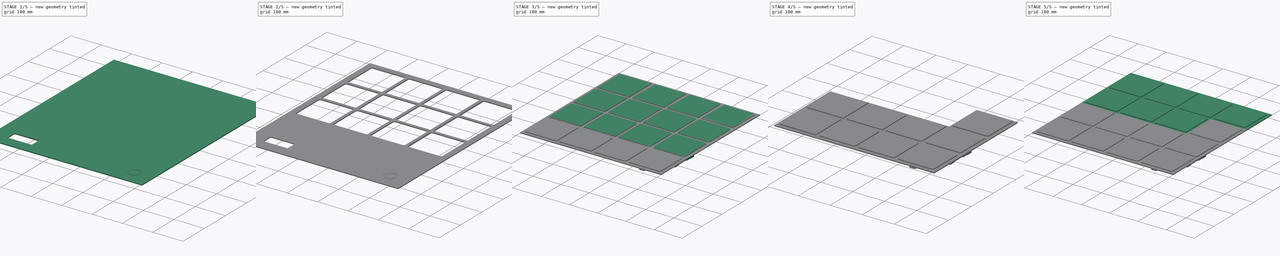
[diagram: build sequence overview — one tinted view per stage of 5, left to right]
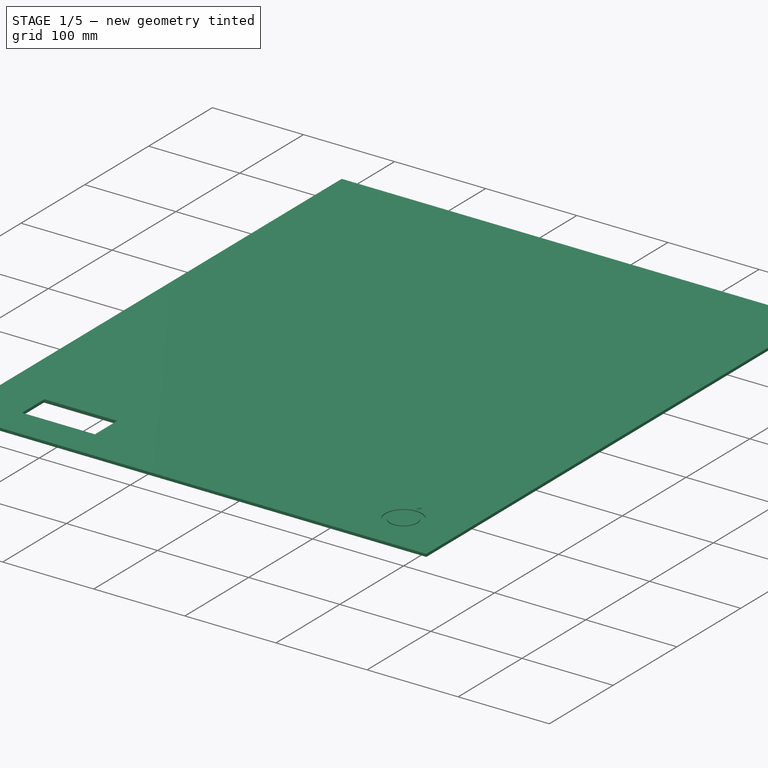
[diagram: stage 1 of 5 — iso view after this stage's code; geometry added in this stage tinted green]
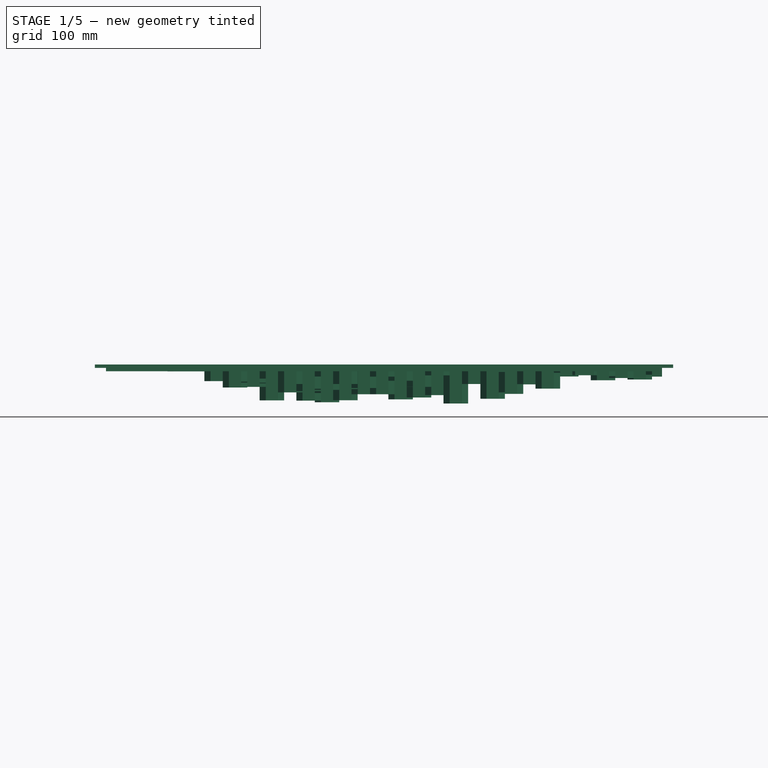
[diagram: stage 1 of 5 — front view after this stage's code; geometry added in this stage tinted green]
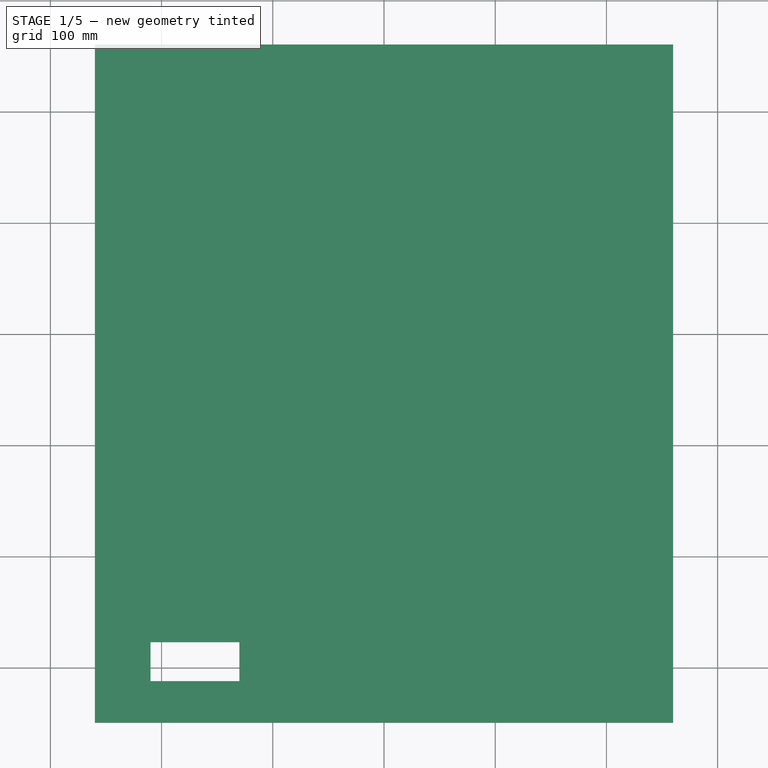
[diagram: stage 1 of 5 — top view after this stage's code; geometry added in this stage tinted green]
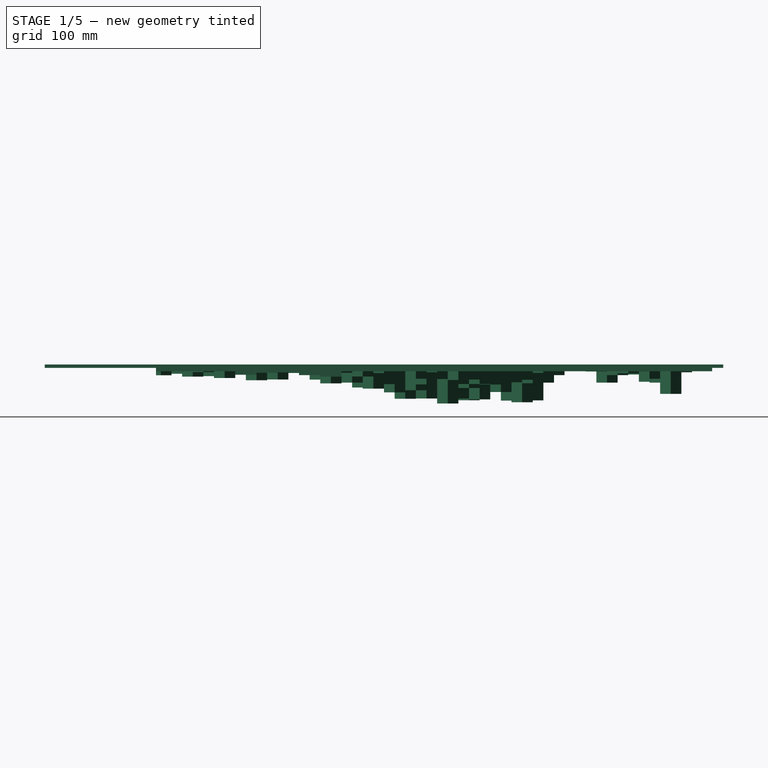
[diagram: stage 1 of 5 — right view after this stage's code; geometry added in this stage tinted green]
FCSTD DOCUMENT  (FreeCAD 0.17R13541 (Git))
Label: 3d_model_tutorial_division_negative
License: All rights reserved
LicenseURL: http://en.wikipedia.org/wiki/All_rights_reserved
objects: Drawing::FeatureViewPart×47, Part::MultiCommon×16, Part::Mirroring×12, Part::FeaturePython×8, Part::Cut×4, PartDesign::FeatureBase×4, Sketcher::SketchObject×4, PartDesign::Body×4, Part::Extrusion×4, Drawing::FeaturePage×1
note: 56 computed .brp shape members not serialized (recipe doc carries the construction recipe); baked Part::Feature solids carry a one-line shape summary decoded from their .brp

FEATURE [Part::FeaturePython] Clone  label="Body001"  # WARN: FeaturePython — macro-defined, semantics opaque (R4)
  AttacherType = Attacher::AttachEngine3D
  Fuse = false
  Scale = (1,1,1)
FEATURE [Part::FeaturePython] Clone001  # WARN: FeaturePython — macro-defined, semantics opaque (R4)
  AttacherType = Attacher::AttachEngine3D
  Fuse = false
  Placement = pos=(0,0,20.5) rot=(0,0,1;1.5708rad)
  Scale = (1,1,1)
FEATURE [Part::Cut] Cut  label="map"
  Base = -> Clone001
  Tool = -> Clone
FEATURE [PartDesign::FeatureBase] BaseFeature
  BaseFeature = -> Cut
FEATURE [Sketcher::SketchObject] Sketch
  ExternalGeometry = -> [BaseFeature]
  MapMode = 5
  Placement = pos=(0,0,-3) rot=(0,0,1;0rad)
  Support = -> [BaseFeature]
  sketch-geometry (36):
    g0: LineSegment StartX=-250 StartY=250 StartZ=0 EndX=-121.905 EndY=250 EndZ=0
    g1: LineSegment [constr] StartX=-121.905 StartY=250 StartZ=0 EndX=0 EndY=250 EndZ=0
    g2: LineSegment [constr] StartX=0 StartY=250 StartZ=0 EndX=123.676 EndY=250 EndZ=0
    g3: LineSegment [constr] StartX=123.676 StartY=250 StartZ=0 EndX=250 EndY=250 EndZ=0
    g4: LineSegment [constr] StartX=250 StartY=250 StartZ=0 EndX=250 EndY=126.908 EndZ=0
    g5: LineSegment [constr] StartX=250 StartY=126.908 StartZ=0 EndX=250 EndY=1.96272 EndZ=0
    g6: LineSegment [constr] StartX=250 StartY=1.96272 StartZ=0 EndX=250 EndY=-120.896 EndZ=0
    g7: LineSegment [constr] StartX=250 StartY=-120.896 StartZ=0 EndX=250 EndY=-250 EndZ=0
    g8: LineSegment [constr] StartX=250 StartY=-250 StartZ=0 EndX=126.964 EndY=-250 EndZ=0
    g9: LineSegment [constr] StartX=126.964 StartY=-250 StartZ=0 EndX=0 EndY=-250 EndZ=0
    g10: LineSegment [constr] StartX=0 StartY=-250 StartZ=0 EndX=-121.905 EndY=-250 EndZ=0
    g11: LineSegment [constr] StartX=-121.905 StartY=-250 StartZ=0 EndX=-250 EndY=-250 EndZ=0
    g12: LineSegment [constr] StartX=-250 StartY=-250 StartZ=0 EndX=-250 EndY=-122.5 EndZ=0
    g13: LineSegment [constr] StartX=-250 StartY=-122.5 StartZ=0 EndX=-250 EndY=0 EndZ=0
    g14: LineSegment [constr] StartX=-250 StartY=0 StartZ=0 EndX=-250 EndY=122.5 EndZ=0
    g15: LineSegment StartX=-250 StartY=122.5 StartZ=0 EndX=-250 EndY=250 EndZ=0
    g16: LineSegment StartX=-250 StartY=122.5 StartZ=0 EndX=-121.905 EndY=122.5 EndZ=0
    g17: LineSegment StartX=-121.905 StartY=122.5 StartZ=0 EndX=-121.905 EndY=250 EndZ=0
    g18: LineSegment [constr] StartX=-121.905 StartY=122.5 StartZ=0 EndX=-121.905 EndY=0 EndZ=0
    g19: LineSegment [constr] StartX=-121.905 StartY=0 StartZ=0 EndX=-250 EndY=0 EndZ=0
    g20: LineSegment [constr] StartX=-250 StartY=-122.5 StartZ=0 EndX=-121.905 EndY=-122.5 EndZ=0
    g21: LineSegment [constr] StartX=-121.905 StartY=-122.5 StartZ=0 EndX=-121.905 EndY=0 EndZ=0
    g22: LineSegment [constr] StartX=-121.905 StartY=-122.5 StartZ=0 EndX=-121.905 EndY=-250 EndZ=0
    g23: LineSegment [constr] StartX=-121.905 StartY=122.5 StartZ=0 EndX=0 EndY=122.5 EndZ=0
    g24: LineSegment [constr] StartX=0 StartY=122.5 StartZ=0 EndX=0 EndY=250 EndZ=0
    g25: LineSegment [constr] StartX=-121.905 StartY=0 StartZ=0 EndX=0 EndY=0 EndZ=0
    g26: LineSegment [constr] StartX=0 StartY=0 StartZ=0 EndX=0 EndY=122.5 EndZ=0
    g27: LineSegment [constr] StartX=-121.905 StartY=-122.5 StartZ=0 EndX=0 EndY=-122.5 EndZ=0
    g28: LineSegment [constr] StartX=0 StartY=-122.5 StartZ=0 EndX=0 EndY=0 EndZ=0
    g29: LineSegment [constr] StartX=0 StartY=-122.5 StartZ=0 EndX=0 EndY=-250 EndZ=0
    g30: LineSegment [constr] StartX=-127.5 StartY=127.5 StartZ=0 EndX=-121.905 EndY=122.5 EndZ=0
    g31: LineSegment [constr] StartX=-121.905 StartY=122.5 StartZ=0 EndX=-127.5 EndY=117.5 EndZ=0
    g32: LineSegment [constr] StartX=-127.5 StartY=5 StartZ=0 EndX=-121.905 EndY=0 EndZ=0
    g33: LineSegment [constr] StartX=-121.905 StartY=0 StartZ=0 EndX=-127.5 EndY=-5 EndZ=0
    g34: LineSegment [constr] StartX=-127.5 StartY=-117.5 StartZ=0 EndX=-121.905 EndY=-122.5 EndZ=0
    g35: LineSegment [constr] StartX=-121.905 StartY=-122.5 StartZ=0 EndX=-127.5 EndY=-127.5 EndZ=0
  constraints (88):
    c: Horizontal(g0)
    c: Coincident(g0,g1)
    c: Horizontal(g1)
    c: Coincident(g1,g2)
    c: Horizontal(g2)
    c: Coincident(g2,g3)
    c: Horizontal(g3)
    c: Coincident(g3,g4)
    c: Vertical(g4)
    c: Coincident(g4,g5)
    c: Vertical(g5)
    c: Coincident(g5,g6)
    c: Vertical(g6)
    c: Coincident(g6,g7)
    c: Vertical(g7)
    c: Coincident(g7,g8)
    c: Horizontal(g8)
    c: Coincident(g8,g9)
    c: Horizontal(g9)
    c: Coincident(g9,g10)
    c: Horizontal(g10)
    c: Coincident(g10,g11)
    c: Horizontal(g11)
    c: Coincident(g11,g12)
    c: Vertical(g12)
    c: Coincident(g12,g13)
    c: Vertical(g13)
    c: Coincident(g13,g14)
    c: Vertical(g14)
    c: Coincident(g14,g15)
    c: Coincident(g15,g0)
    c: Vertical(g15)
    c: Coincident(g0,g-3)
    c: Coincident(g-4,g11)
    c: Coincident(g-3,g3)
    c: Coincident(g14,g16)
    c: Horizontal(g16)
    c: Coincident(g16,g17)
    c: Coincident(g17,g0)
    c: Vertical(g17)
    c: Coincident(g16,g18)
    c: Vertical(g18)
    c: Coincident(g18,g19)
    c: Horizontal(g19)
    c: Coincident(g13,g19)
    c: Horizontal(g20)
    c: Coincident(g20,g21)
    c: Coincident(g21,g18)
    c: Vertical(g21)
    c: Coincident(g20,g12)
    c: Coincident(g20,g22)
    c: Coincident(g22,g10)
    c: Vertical(g22)
    c: Coincident(g16,g23)
    c: PointOnObject(g23,g-2)
    c: Horizontal(g23)
    c: Coincident(g23,g24)
    c: Coincident(g24,g1)
    c: Vertical(g24)
    c: Coincident(g25,g-1)
    c: Horizontal(g25)
    c: Coincident(g25,g26)
    c: Coincident(g26,g23)
    c: Coincident(g20,g27)
    c: PointOnObject(g27,g-2)
    c: Horizontal(g27)
    c: Coincident(g27,g28)
    c: Coincident(g28,g-1)
    c: Coincident(g29,g27)
    c: Coincident(g29,g9)
    c: Vertical(g29)
    c: Equal(g21,g28)
    c: Coincident(g25,g18)
    c: Coincident(g-5,g30)
    c: Coincident(g30,g16)
    c: Coincident(g30,g31)
    c: Coincident(g31,g-6)
    c: Equal(g30,g31)
    c: Coincident(g-7,g32)
    c: Coincident(g32,g18)
    c: Coincident(g32,g33)
    c: Coincident(g33,g-8)
    c: Coincident(g-9,g34)
    c: Coincident(g34,g20)
    c: Coincident(g34,g35)
    c: Coincident(g35,g-10)
    c: Equal(g34,g35)
    c: Equal(g32,g33)
FEATURE [PartDesign::Body] Body
  BaseFeature = -> Cut
  Group = -> [BaseFeature,Sketch]
  Origin = -> Origin
  Tip = -> BaseFeature
FEATURE [Part::Extrusion] Extrude  label="A1"
  Base = -> Sketch
  Dir = (0,0,1)
  DirMode = 2
  FaceMakerClass = Part::FaceMakerBullseye
  LengthFwd = 50
  LengthRev = 0
  Solid = true
  Symmetric = true
FEATURE [Part::Mirroring] Part__Mirroring  label="D1"
  Base = (0,0,0)
  Normal = (0,1,0)
  Source = -> Extrude
FEATURE [Part::Mirroring] Part__Mirroring002  label="D4"
  Base = (0,0,0)
  Normal = (1,0,0)
  Source = -> Part__Mirroring
FEATURE [Part::FeaturePython] Clone006  # WARN: FeaturePython — macro-defined, semantics opaque (R4)
  AttacherType = Attacher::AttachEngine3D
  Fuse = false
  Placement = pos=(0,0,20.5) rot=(0,0,1;1.5708rad)
  Scale = (1,1,1)
FEATURE [Part::FeaturePython] Clone007  label="Body006"  # WARN: FeaturePython — macro-defined, semantics opaque (R4)
  AttacherType = Attacher::AttachEngine3D
  Fuse = false
  Scale = (1,1,1)
FEATURE [Part::MultiCommon] Common015  label="D4_cut"
  Shapes = -> [Cut,Part__Mirroring002]
FEATURE [Drawing::FeatureViewPart] Ortho  label="Ortho_0_0"
  Direction = (1,0,0)
  HiddenWidth = 0.15
  LineWidth = 0.35
  Rotation = -90
  ShowHiddenLines = false
  ShowSmoothLines = false
  Source = -> Common
  Tolerance = 0.05
  ViewResult = <g id="Ortho_0_0"\n   transform="rotate(-90,134.29,681.126) translate(134.29,681.126) scale(1,1)"\n  >\n<g   fill="none"\n   stroke="rgb(0, 0, 0)"\n   stroke-linecap="butt"\n   stroke-linejoin="miter"\n   stroke-width="0.350000"\n   transform="scale(1,-1)"\n  >\n<path id= "1" d=" M -6 -250 L -6 -122.5 " />\n<path id= "2" d=" M -6 -250 L -3 -250 " />\n<path id= "3" d=" M -3 -122.5 L -3 -250 " />\n<path id= "4" d=" M -6 -122.5 L -3 -122.5 " />\n<path id= "5" d=" M 0 -240 L -3 -240 " />\n<path id= "6" d=" M 0 -240 L 0 -127.5 " />\n<path id= "7" d=" M 0 -127.5 L -3 -127.5 " />\n</g>\n</g>
  Visible = false
  X = 134.29
  Y = 681.126
FEATURE [Drawing::FeatureViewPart] Ortho001  label="Ortho_0_1"
  Direction = (0,0,1)
  HiddenWidth = 0.15
  LineWidth = 0.35
  Rotation = 90
  ShowHiddenLines = false
  ShowSmoothLines = false
  Source = -> Common
  Tolerance = 0.05
  ViewResult = <g id="Ortho_0_1"\n   transform="rotate(90,134.29,527.016) translate(134.29,527.016) scale(1,1)"\n  >\n<g   fill="none"\n   stroke="rgb(0, 0, 0)"\n   stroke-linecap="butt"\n   stroke-linejoin="miter"\n   stroke-width="0.350000"\n   transform="scale(1,-1)"\n  >\n<path id= "1" d=" M -250 250 L -250 122.5 " />\n<path id= "2" d=" M -121.905 250 L -250 250 " />\n<path id= "3" d=" M -121.905 122.5 L -121.905 250 " />\n<path id= "4" d=" M -250 122.5 L -121.905 122.5 " />\n<path id= "5" d=" M -236 240 L -127.5 240 " />\n<path d="M-236 240 A4 4 0 0 1 -240 236" /><path id= "7" d=" M -127.5 240 L -127.5 127.5 " />\n<path id= "8" d=" M -240 127.5 L -240 236 " />\n<path id= "9" d=" M -127.5 127.5 L -240 127.5 " />\n</g>\n</g>
  Visible = false
  X = 134.29
  Y = 527.016
FEATURE [Drawing::FeatureViewPart] Ortho002  label="Ortho_1_1"
  Direction = (0.57735,0.57735,0.57735)
  HiddenWidth = 0.15
  LineWidth = 0.35
  Rotation = 120
  ShowHiddenLines = false
  ShowSmoothLines = false
  Source = -> Common
  Tolerance = 0.05
  ViewResult = <g id="Ortho_1_1"\n   transform="rotate(120,614.083,338.492) translate(614.083,338.492) scale(1,1)"\n  >\n<g   fill="none"\n   stroke="rgb(0, 0, 0)"\n   stroke-linecap="butt"\n   stroke-linejoin="miter"\n   stroke-width="0.350000"\n   transform="scale(1,-1)"\n  >\n<path id= "1" d=" M -168.877 292.504 L -166.756 293.729 " />\n</g>\n<g   fill="none"\n   stroke="rgb(0, 0, 0)"\n   stroke-linecap="butt"\n   stroke-linejoin="miter"\n   stroke-width="0.350000"\n   transform="scale(1,-1)"\n  >\n<path id= "1" d=" M -172.534 308.636 L -81.9574 256.341 " />\n<path id= "2" d=" M -81.9574 256.341 L -81.9574 152.238 " />\n<path id= "3" d=" M -172.534 308.636 L -174.655 307.411 " />\n<path id= "4" d=" M -174.655 307.411 L -174.655 203.308 " />\n<path id= "5" d=" M -81.9574 256.341 L -84.0787 255.116 " />\n<path id= "6" d=" M -84.0787 255.116 L -174.655 307.411 " />\n<path id= "7" d=" M -84.0787 151.013 L -84.0787 255.116 " />\n<path id= "8" d=" M -81.9574 152.238 L -84.0787 151.013 " />\n<path id= "9" d=" M -174.655 203.308 L -84.0787 151.013 " />\n<path id= "10" d=" M -88.0348 249.236 L -164.756 293.531 " />\n<path d="M-164.756 293.531 A4 2.3094 120 0 1 -166.756 293.729" />\n<path id= "12" d=" M -88.0348 157.38 L -88.0348 249.236 " />\n<path id= "13" d=" M -166.877 292.306 L -90.1561 248.011 " />\n<path id= "14" d=" M -90.1561 248.011 L -88.0348 249.236 " />\n<path d="M-166.877 292.306 A4 2.3094 120 0 1 -168.877 292.504" />\n<path d="M-168.877 292.504 A4 2.3094 120 0 1 -169.706 290.673" />\n<path id= "17" d=" M -90.1561 248.011 L -90.1561 156.155 " />\n<path id= "18" d=" M -90.1561 156.155 L -88.0348 157.38 " />\n<path id= "19" d=" M -169.706 202.083 L -169.706 290.673 " />\n<path id= "20" d=" M -90.1561 156.155 L -169.706 202.083 " />\n</g>\n</g>
  Visible = false
  X = 614.083
  Y = 338.492
FEATURE [Drawing::FeatureViewPart] Ortho003  label="Ortho_0_002"
  Direction = (1,0,0)
  HiddenWidth = 0.15
  LineWidth = 0.35
  Rotation = -90
  ShowHiddenLines = false
  ShowSmoothLines = false
  Source = -> Common001
  Tolerance = 0.05
  ViewResult = <g id="Ortho_0_002"\n   transform="rotate(-90,142.543,672.819) translate(142.543,672.819) scale(1,1)"\n  >\n<g   fill="none"\n   stroke="rgb(0, 0, 0)"\n   stroke-linecap="butt"\n   stroke-linejoin="miter"\n   stroke-width="0.350000"\n   transform="scale(1,-1)"\n  >\n<path id= "1" d=" M -6 -250 L -6 -122.5 " />\n<path id= "2" d=" M -6 -250 L -3 -250 " />\n<path id= "3" d=" M -3 -122.5 L -3 -250 " />\n<path id= "4" d=" M -6 -122.5 L -3 -122.5 " />\n<path id= "5" d=" M -6.0468 -122.5 L -6 -122.5 " />\n<path id= "6" d=" M -6.0468 -126.898 L -6.0468 -122.5 " />\n<path id= "7" d=" M -6.0468 -126.898 L -6 -126.898 " />\n<path id= "8" d=" M 0 -127.5 L -3 -127.5 " />\n<path id= "9" d=" M 0 -240 L 0 -127.5 " />\n<path id= "10" d=" M 0 -240 L -3 -240 " />\n</g>\n</g>
  Visible = false
  X = 142.543
  Y = 672.819
FEATURE [Drawing::FeatureViewPart] Ortho004  label="Ortho_0_003"
  Direction = (0,0,1)
  HiddenWidth = 0.15
  LineWidth = 0.35
  Rotation = 90
  ShowHiddenLines = false
  ShowSmoothLines = false
  Source = -> Common001
  Tolerance = 0.05
  ViewResult = <g id="Ortho_0_003"\n   transform="rotate(90,142.543,397.827) translate(142.543,397.827) scale(1,1)"\n  >\n<g   fill="none"\n   stroke="rgb(0, 0, 0)"\n   stroke-linecap="butt"\n   stroke-linejoin="miter"\n   stroke-width="0.350000"\n   transform="scale(1,-1)"\n  >\n<path id= "1" d=" M 0 250 L -121.905 250 " />\n<path id= "2" d=" M 0 122.5 L 0 250 " />\n<path id= "3" d=" M -121.905 122.5 L 0 122.5 " />\n<path id= "4" d=" M -121.905 122.5 L -121.905 250 " />\n<path id= "5" d=" M -5 127.5 L -113.5 127.5 " />\n<path d="M-117.5 131.5 A4 4 0 0 1 -113.5 127.5" /><path id= "7" d=" M -5 240 L -5 127.5 " />\n<path id= "8" d=" M -117.5 131.5 L -117.5 236 " />\n<path id= "9" d=" M -113.5 240 L -5 240 " />\n<path d="M-113.5 240 A4 4 0 0 1 -117.5 236" /></g>\n</g>
  Visible = false
  X = 142.543
  Y = 397.827
FEATURE [Drawing::FeatureViewPart] Ortho005  label="Ortho_1_002"
  Direction = (0.57735,0.57735,0.57735)
  HiddenWidth = 0.15
  LineWidth = 0.35
  Rotation = 120
  ShowHiddenLines = false
  ShowSmoothLines = false
  Source = -> Common001
  Tolerance = 0.05
  ViewResult = <g id="Ortho_1_002"\n   transform="rotate(120,706.598,283.253) translate(706.598,283.253) scale(1,1)"\n  >\n<g   fill="none"\n   stroke="rgb(0, 0, 0)"\n   stroke-linecap="butt"\n   stroke-linejoin="miter"\n   stroke-width="0.350000"\n   transform="scale(1,-1)"\n  >\n<path id= "1" d=" M -82.2566 242.493 L -80.1353 243.718 " />\n</g>\n<g   fill="none"\n   stroke="rgb(0, 0, 0)"\n   stroke-linecap="butt"\n   stroke-linejoin="miter"\n   stroke-width="0.350000"\n   transform="scale(1,-1)"\n  >\n<path id= "1" d=" M -81.9574 256.341 L 4.24264 206.574 " />\n<path id= "2" d=" M 4.24264 206.574 L 4.24264 102.47 " />\n<path id= "3" d=" M 4.24264 206.574 L 2.12132 205.349 " />\n<path id= "4" d=" M 2.12132 205.349 L -84.0787 255.116 " />\n<path id= "5" d=" M -81.9574 256.341 L -84.0787 255.116 " />\n<path id= "6" d=" M 2.12132 101.246 L 2.12132 205.349 " />\n<path id= "7" d=" M 4.24264 102.47 L 2.12132 101.246 " />\n<path id= "8" d=" M -84.0787 151.013 L 2.12132 101.246 " />\n<path id= "9" d=" M -84.0787 151.013 L -84.0787 255.116 " />\n<path id= "10" d=" M -1.41421 107.369 L -1.41421 199.225 " />\n<path id= "11" d=" M -1.41421 199.225 L -78.1353 243.52 " />\n<path d="M-78.1353 243.52 A4 2.3094 120 0 1 -80.1353 243.718" />\n<path id= "13" d=" M -3.53553 106.145 L -80.2566 150.439 " />\n<path id= "14" d=" M -3.53553 106.145 L -1.41421 107.369 " />\n<path d="M-83.085 155.338 A4 2.3094 120 0 1 -80.2566 150.439" />\n<path id= "16" d=" M -3.53553 198 L -3.53553 106.145 " />\n<path id= "17" d=" M -3.53553 198 L -1.41421 199.225 " />\n<path id= "18" d=" M -83.085 155.338 L -83.085 240.662 " />\n<path id= "19" d=" M -80.2566 242.295 L -3.53553 198 " />\n<path d="M-80.2566 242.295 A4 2.3094 120 0 1 -82.2566 242.493" />\n<path d="M-82.2566 242.493 A4 2.3094 120 0 1 -83.085 240.662" />\n</g>\n</g>
  Visible = false
  X = 706.598
  Y = 283.253
FEATURE [Drawing::FeatureViewPart] Ortho006  label="Ortho_0_004"
  Direction = (1,0,0)
  HiddenWidth = 0.15
  LineWidth = 0.35
  Rotation = -90
  ShowHiddenLines = false
  ShowSmoothLines = false
  Source = -> Common002
  Tolerance = 0.05
  ViewResult = <blob: 5046 chars omitted>
  Visible = false
  X = 413.25
  Y = 1245.43
FEATURE [Drawing::FeatureViewPart] Ortho007  label="Ortho_1_003"
  Direction = (0.57735,0.57735,0.57735)
  HiddenWidth = 0.15
  LineWidth = 0.35
  Rotation = 120
  ShowHiddenLines = false
  ShowSmoothLines = false
  Source = -> Common002
  Tolerance = 0.05
  ViewResult = <blob: 3786 chars omitted>
  Visible = false
  X = 1578.02
  Y = 278.806
FEATURE [Drawing::FeatureViewPart] Ortho008  label="Ortho_0_005"
  Direction = (1,0,0)
  HiddenWidth = 0.15
  LineWidth = 0.35
  Rotation = -90
  ShowHiddenLines = false
  ShowSmoothLines = false
  Source = -> Common003
  Tolerance = 0.05
  ViewResult = <blob: 2317 chars omitted>
  Visible = false
  X = 413.25
  Y = 1270.18
FEATURE [Drawing::FeatureViewPart] Ortho009  label="Ortho_0_006"
  Direction = (0,0,1)
  HiddenWidth = 0.15
  LineWidth = 0.35
  Rotation = 90
  ShowHiddenLines = false
  ShowSmoothLines = false
  Source = -> Common003
  Tolerance = 0.05
  ViewResult = <g id="Ortho_0_006"\n   transform="rotate(90,413.25,204.547) translate(413.25,204.547) scale(1,1)"\n  >\n<g   fill="none"\n   stroke="rgb(0, 0, 0)"\n   stroke-linecap="butt"\n   stroke-linejoin="miter"\n   stroke-width="0.350000"\n   transform="scale(1,-1)"\n  >\n<path id= "1" d=" M 250 250 L 121.905 250 " />\n<path id= "2" d=" M 121.905 250 L 121.905 122.5 " />\n<path id= "3" d=" M 121.905 122.5 L 250 122.5 " />\n<path id= "4" d=" M 250 122.5 L 250 250 " />\n<path id= "5" d=" M 240 236 L 240 131.5 " />\n<path d="M240 131.5 A4 4 0 0 0 236 127.5" /><path d="M236 240 A4 4 0 0 0 240 236" /><path id= "8" d=" M 236 127.5 L 131.5 127.5 " />\n<path id= "9" d=" M 131.5 240 L 236 240 " />\n<path d="M127.5 131.5 A4 4 0 0 1 131.5 127.5" /><path d="M131.5 240 A4 4 0 0 1 127.5 236" /><path id= "12" d=" M 127.5 131.5 L 127.5 236 " />\n</g>\n</g>
  Visible = false
  X = 413.25
  Y = 204.547
FEATURE [Drawing::FeatureViewPart] Ortho010  label="Ortho_1_004"
  Direction = (0.57735,0.57735,0.57735)
  HiddenWidth = 0.15
  LineWidth = 0.35
  Rotation = 120
  ShowHiddenLines = false
  ShowSmoothLines = false
  Source = -> Common003
  Tolerance = 0.05
  ViewResult = <blob: 2012 chars omitted>
  Visible = false
  X = 1691.17
  Y = 227.775
FEATURE [Drawing::FeatureViewPart] Ortho011  label="Ortho_0_007"
  Direction = (1,0,0)
  HiddenWidth = 0.15
  LineWidth = 0.35
  Rotation = -90
  ShowHiddenLines = false
  ShowSmoothLines = false
  Source = -> Common004
  Tolerance = 0.05
  ViewResult = <blob: 2661 chars omitted>
  Visible = false
  X = 255.957
  Y = 712.385
FEATURE [Drawing::FeatureViewPart] Ortho012  label="Ortho_0_008"
  Direction = (0,0,1)
  HiddenWidth = 0.15
  LineWidth = 0.35
  Rotation = 90
  ShowHiddenLines = false
  ShowSmoothLines = false
  Source = -> Common004
  Tolerance = 0.05
  ViewResult = <g id="Ortho_0_008"\n   transform="rotate(90,255.957,537.026) translate(255.957,537.026) scale(1,1)"\n  >\n<g   fill="none"\n   stroke="rgb(0, 0, 0)"\n   stroke-linecap="butt"\n   stroke-linejoin="miter"\n   stroke-width="0.350000"\n   transform="scale(1,-1)"\n  >\n<path id= "1" d=" M -250 122.5 L -250 0 " />\n<path id= "2" d=" M -121.905 122.5 L -250 122.5 " />\n<path id= "3" d=" M -250 0 L -121.905 0 " />\n<path id= "4" d=" M -121.905 0 L -121.905 122.5 " />\n<path id= "5" d=" M -235 117.5 L -127.5 117.5 " />\n<path d="M-235 117.5 A5 5 0 0 1 -240 112.5" /><path id= "7" d=" M -127.5 117.5 L -127.5 5 " />\n<path id= "8" d=" M -240 5 L -240 112.5 " />\n<path id= "9" d=" M -127.5 5 L -240 5 " />\n</g>\n</g>
  Visible = false
  X = 255.957
  Y = 537.026
FEATURE [Drawing::FeatureViewPart] Ortho013  label="Ortho_1_005"
  Direction = (0.57735,0.57735,0.57735)
  HiddenWidth = 0.15
  LineWidth = 0.35
  Rotation = 120
  ShowHiddenLines = false
  ShowSmoothLines = false
  Source = -> Common004
  Tolerance = 0.05
  ViewResult = <blob: 3451 chars omitted>
  Visible = false
  X = 695.805
  Y = 396.474
FEATURE [Drawing::FeatureViewPart] Ortho014  label="Ortho_0_009"
  Direction = (1,0,0)
  HiddenWidth = 0.15
  LineWidth = 0.35
  Rotation = -90
  ShowHiddenLines = false
  ShowSmoothLines = false
  Source = -> Common005
  Tolerance = 0.05
  ViewResult = <blob: 8182 chars omitted>
  Visible = false
  X = 264.21
  Y = 680.299
FEATURE [Drawing::FeatureViewPart] Ortho015  label="Ortho_1_006"
  Direction = (0.57735,0.57735,0.57735)
  HiddenWidth = 0.15
  LineWidth = 0.35
  Rotation = 120
  ShowHiddenLines = false
  ShowSmoothLines = false
  Source = -> Common005
  Tolerance = 0.05
  ViewResult = <blob: 4178 chars omitted>
  Visible = false
  X = 788.32
  Y = 305.739
FEATURE [Drawing::FeatureViewPart] Ortho016  label="Ortho_0_010"
  Direction = (0,0,1)
  HiddenWidth = 0.15
  LineWidth = 0.35
  Rotation = 90
  ShowHiddenLines = false
  ShowSmoothLines = false
  Source = -> Common005
  Tolerance = 0.05
  ViewResult = <g id="Ortho_0_010"\n   transform="rotate(90,264.21,380.662) translate(264.21,380.662) scale(1,1)"\n  >\n<g   fill="none"\n   stroke="rgb(0, 0, 0)"\n   stroke-linecap="butt"\n   stroke-linejoin="miter"\n   stroke-width="0.350000"\n   transform="scale(1,-1)"\n  >\n<path id= "1" d=" M 0 0 L 0 122.5 " />\n<path id= "2" d=" M -121.905 0 L 0 0 " />\n<path id= "3" d=" M -121.905 122.5 L -121.905 0 " />\n<path id= "4" d=" M -121.905 122.5 L 0 122.5 " />\n<path id= "5" d=" M -5 5 L -112.5 5 " />\n<path d="M-117.5 10 A5 5 0 0 1 -112.5 5" /><path id= "7" d=" M -5 117.5 L -5 5 " />\n<path id= "8" d=" M -117.5 10 L -117.5 112.5 " />\n<path id= "9" d=" M -112.5 117.5 L -5 117.5 " />\n<path d="M-112.5 117.5 A5 5 0 0 1 -117.5 112.5" /></g>\n</g>
  Visible = false
  X = 264.21
  Y = 380.662
FEATURE [Drawing::FeatureViewPart] Ortho017  label="Ortho_0_011"
  Direction = (1,0,0)
  HiddenWidth = 0.15
  LineWidth = 0.35
  Rotation = -90
  ShowHiddenLines = false
  ShowSmoothLines = false
  Source = -> Common006
  Tolerance = 0.05
  ViewResult = <blob: 5692 chars omitted>
  Visible = false
  X = 264.21
  Y = 679.048
FEATURE [Drawing::FeatureViewPart] Ortho018  label="Ortho_0_012"
  Direction = (0,0,1)
  HiddenWidth = 0.15
  LineWidth = 0.35
  Rotation = 90
  ShowHiddenLines = false
  ShowSmoothLines = false
  Source = -> Common006
  Tolerance = 0.05
  ViewResult = <g id="Ortho_0_012"\n   transform="rotate(90,264.21,257.327) translate(264.21,257.327) scale(1,1)"\n  >\n<g   fill="none"\n   stroke="rgb(0, 0, 0)"\n   stroke-linecap="butt"\n   stroke-linejoin="miter"\n   stroke-width="0.350000"\n   transform="scale(1,-1)"\n  >\n<path id= "1" d=" M 121.905 0 L 0 0 " />\n<path id= "2" d=" M 0 0 L 0 122.5 " />\n<path id= "3" d=" M 121.905 122.5 L 0 122.5 " />\n<path id= "4" d=" M 121.905 122.5 L 121.905 0 " />\n<path id= "5" d=" M 117.5 112.5 L 117.5 5 " />\n<path d="M112.5 117.5 A5 5 0 0 0 117.5 112.5" /><path id= "7" d=" M 117.5 5 L 10 5 " />\n<path id= "8" d=" M 10 117.5 L 112.5 117.5 " />\n<path d="M5 10 A5 5 0 0 1 10 5" /><path d="M10 117.5 A5 5 0 0 1 5 112.5" /><path id= "11" d=" M 5 10 L 5 112.5 " />\n</g>\n</g>
  Visible = false
  X = 264.21
  Y = 257.327
FEATURE [Drawing::FeatureViewPart] Ortho019  label="Ortho_1_007"
  Direction = (0.57735,0.57735,0.57735)
  HiddenWidth = 0.15
  LineWidth = 0.35
  Rotation = 120
  ShowHiddenLines = false
  ShowSmoothLines = false
  Source = -> Common006
  Tolerance = 0.05
  ViewResult = <blob: 2363 chars omitted>
  Visible = false
  X = 874.52
  Y = 254.104
FEATURE [Drawing::FeatureViewPart] Ortho020  label="Ortho_0_013"
  Direction = (1,0,0)
  HiddenWidth = 0.15
  LineWidth = 0.35
  Rotation = -90
  ShowHiddenLines = false
  ShowSmoothLines = false
  Source = -> Common007
  Tolerance = 0.05
  ViewResult = <blob: 2895 chars omitted>
  Visible = false
  X = 255.957
  Y = 707.324
FEATURE [Drawing::FeatureViewPart] Ortho021  label="Ortho_0_014"
  Direction = (0,0,1)
  HiddenWidth = 0.15
  LineWidth = 0.35
  Rotation = 90
  ShowHiddenLines = false
  ShowSmoothLines = false
  Source = -> Common007
  Tolerance = 0.05
  ViewResult = <g id="Ortho_0_014"\n   transform="rotate(90,255.957,159.336) translate(255.957,159.336) scale(1,1)"\n  >\n<g   fill="none"\n   stroke="rgb(0, 0, 0)"\n   stroke-linecap="butt"\n   stroke-linejoin="miter"\n   stroke-width="0.350000"\n   transform="scale(1,-1)"\n  >\n<path id= "1" d=" M 250 0 L 250 122.5 " />\n<path id= "2" d=" M 121.905 122.5 L 250 122.5 " />\n<path id= "3" d=" M 121.905 0 L 121.905 122.5 " />\n<path id= "4" d=" M 250 0 L 121.905 0 " />\n<path id= "5" d=" M 240 112.5 L 240 10 " />\n<path d="M240 10 A5 5 0 0 0 235 5" /><path d="M235 117.5 A5 5 0 0 0 240 112.5" /><path id= "8" d=" M 235 5 L 132.5 5 " />\n<path id= "9" d=" M 132.5 117.5 L 235 117.5 " />\n<path d="M127.5 10 A5 5 0 0 1 132.5 5" /><path d="M132.5 117.5 A5 5 0 0 1 127.5 112.5" /><path id= "12" d=" M 127.5 10 L 127.5 112.5 " />\n</g>\n</g>
  Visible = false
  X = 255.957
  Y = 159.336
FEATURE [Drawing::FeatureViewPart] Ortho022  label="Ortho_1_008"
  Direction = (0.57735,0.57735,0.57735)
  HiddenWidth = 0.15
  LineWidth = 0.35
  Rotation = 120
  ShowHiddenLines = false
  ShowSmoothLines = false
  Source = -> Common007
  Tolerance = 0.05
  ViewResult = <blob: 3024 chars omitted>
  Visible = false
  X = 958.781
  Y = 237.09
FEATURE [Drawing::FeatureViewPart] Ortho023  label="Ortho_0_015"
  Direction = (1,0,0)
  HiddenWidth = 0.15
  LineWidth = 0.35
  Rotation = -90
  ShowHiddenLines = false
  ShowSmoothLines = false
  Source = -> Common008
  Tolerance = 0.05
  ViewResult = <blob: 3071 chars omitted>
  Visible = false
  X = 378.457
  Y = 704.07
FEATURE [Drawing::FeatureViewPart] Ortho024  label="Ortho_0_016"
  Direction = (0,0,1)
  HiddenWidth = 0.15
  LineWidth = 0.35
  Rotation = 90
  ShowHiddenLines = false
  ShowSmoothLines = false
  Source = -> Common008
  Tolerance = 0.05
  ViewResult = <g id="Ortho_0_016"\n   transform="rotate(90,378.457,527.523) translate(378.457,527.523) scale(1,1)"\n  >\n<g   fill="none"\n   stroke="rgb(0, 0, 0)"\n   stroke-linecap="butt"\n   stroke-linejoin="miter"\n   stroke-width="0.350000"\n   transform="scale(1,-1)"\n  >\n<path id= "1" d=" M -250 0 L -250 -122.5 " />\n<path id= "2" d=" M -121.905 -122.5 L -250 -122.5 " />\n<path id= "3" d=" M -121.905 0 L -121.905 -122.5 " />\n<path id= "4" d=" M -250 0 L -121.905 0 " />\n<path id= "5" d=" M -234 -5 L -127.5 -5 " />\n<path d="M-234 -5 A6 6 0 0 1 -240 -11" /><path id= "7" d=" M -127.5 -5 L -127.5 -117.5 " />\n<path id= "8" d=" M -240 -117.5 L -240 -11 " />\n<path id= "9" d=" M -127.5 -117.5 L -240 -117.5 " />\n</g>\n</g>
  Visible = false
  X = 378.457
  Y = 527.523
FEATURE [Drawing::FeatureViewPart] Ortho025  label="Ortho_1_009"
  Direction = (0.57735,0.57735,0.57735)
  HiddenWidth = 0.15
  LineWidth = 0.35
  Rotation = 120
  ShowHiddenLines = false
  ShowSmoothLines = false
  Source = -> Common008
  Tolerance = 0.05
  ViewResult = <blob: 4299 chars omitted>
  Visible = false
  X = 782.425
  Y = 434.072
FEATURE [Drawing::FeatureViewPart] Ortho026  label="Ortho_0_017"
  Direction = (1,0,0)
  HiddenWidth = 0.15
  LineWidth = 0.35
  Rotation = -90
  ShowHiddenLines = false
  ShowSmoothLines = false
  Source = -> Common009
  Tolerance = 0.05
  ViewResult = <blob: 6274 chars omitted>
  Visible = false
  X = 386.71
  Y = 688.699
FEATURE [Drawing::FeatureViewPart] Ortho027  label="Ortho_0_018"
  Direction = (0,0,1)
  HiddenWidth = 0.15
  LineWidth = 0.35
  Rotation = 90
  ShowHiddenLines = false
  ShowSmoothLines = false
  Source = -> Common009
  Tolerance = 0.05
  ViewResult = <g id="Ortho_0_018"\n   transform="rotate(90,386.71,390.261) translate(386.71,390.261) scale(1,1)"\n  >\n<g   fill="none"\n   stroke="rgb(0, 0, 0)"\n   stroke-linecap="butt"\n   stroke-linejoin="miter"\n   stroke-width="0.350000"\n   transform="scale(1,-1)"\n  >\n<path id= "1" d=" M -121.905 0 L -121.905 -122.5 " />\n<path id= "2" d=" M 0 0 L -121.905 0 " />\n<path id= "3" d=" M 0 -122.5 L -121.905 -122.5 " />\n<path id= "4" d=" M 0 -122.5 L 0 0 " />\n<path id= "5" d=" M -5 -11 L -5 -117.5 " />\n<path d="M-11 -5 A6 6 0 0 0 -5 -11" /><path id= "7" d=" M -5 -117.5 L -117.5 -117.5 " />\n<path id= "8" d=" M -111.5 -5 L -11 -5 " />\n<path id= "9" d=" M -117.5 -117.5 L -117.5 -11 " />\n<path d="M-111.5 -5 A6 6 0 0 1 -117.5 -11" /></g>\n</g>
  Visible = false
  X = 386.71
  Y = 390.261
FEATURE [Drawing::FeatureViewPart] Ortho028  label="Ortho_1_010"
  Direction = (0.57735,0.57735,0.57735)
  HiddenWidth = 0.15
  LineWidth = 0.35
  Rotation = 120
  ShowHiddenLines = false
  ShowSmoothLines = false
  Source = -> Common009
  Tolerance = 0.05
  ViewResult = <blob: 5176 chars omitted>
  Visible = false
  X = 874.94
  Y = 368.289
FEATURE [Drawing::FeatureViewPart] Ortho029  label="Ortho_0_019"
  Direction = (1,0,0)
  HiddenWidth = 0.15
  LineWidth = 0.35
  Rotation = -90
  ShowHiddenLines = false
  ShowSmoothLines = false
  Source = -> Common010
  Tolerance = 0.05
  ViewResult = <blob: 4527 chars omitted>
  Visible = false
  X = 660.75
  Y = 1243.22
FEATURE [Drawing::FeatureViewPart] Ortho030  label="Ortho_0_020"
  Direction = (0,0,1)
  HiddenWidth = 0.15
  LineWidth = 0.35
  Rotation = 90
  ShowHiddenLines = false
  ShowSmoothLines = false
  Source = -> Common010
  Tolerance = 0.05
  ViewResult = <g id="Ortho_0_020"\n   transform="rotate(90,660.75,329.547) translate(660.75,329.547) scale(1,1)"\n  >\n<g   fill="none"\n   stroke="rgb(0, 0, 0)"\n   stroke-linecap="butt"\n   stroke-linejoin="miter"\n   stroke-width="0.350000"\n   transform="scale(1,-1)"\n  >\n<path id= "1" d=" M 121.905 0 L 0 0 " />\n<path id= "2" d=" M 121.905 -122.5 L 121.905 0 " />\n<path id= "3" d=" M 121.905 -122.5 L 0 -122.5 " />\n<path id= "4" d=" M 0 0 L 0 -122.5 " />\n<path id= "5" d=" M 117.5 -11 L 117.5 -111.5 " />\n<path d="M117.5 -111.5 A6 6 0 0 0 111.5 -117.5" /><path d="M111.5 -5 A6 6 0 0 0 117.5 -11" /><path id= "8" d=" M 111.5 -117.5 L 5 -117.5 " />\n<path id= "9" d=" M 11 -5 L 111.5 -5 " />\n<path id= "10" d=" M 5 -117.5 L 5 -11 " />\n<path d="M11 -5 A6 6 0 0 1 5 -11" /></g>\n</g>
  Visible = false
  X = 660.75
  Y = 329.547
FEATURE [Drawing::FeatureViewPart] Ortho031  label="Ortho_1_011"
  Direction = (0.57735,0.57735,0.57735)
  HiddenWidth = 0.15
  LineWidth = 0.35
  Rotation = 120
  ShowHiddenLines = false
  ShowSmoothLines = false
  Source = -> Common010
  Tolerance = 0.05
  ViewResult = <blob: 6480 chars omitted>
  Visible = false
  X = 1753.03
  Y = 378.047
FEATURE [Drawing::FeatureViewPart] Ortho032  label="Ortho_0_021"
  Direction = (1,0,0)
  HiddenWidth = 0.15
  LineWidth = 0.35
  Rotation = -90
  ShowHiddenLines = false
  ShowSmoothLines = false
  Source = -> Common011
  Tolerance = 0.05
  ViewResult = <blob: 6100 chars omitted>
  Visible = false
  X = 660.75
  Y = 1270.87
FEATURE [Drawing::FeatureViewPart] Ortho033  label="Ortho_0_022"
  Direction = (0,0,1)
  HiddenWidth = 0.15
  LineWidth = 0.35
  Rotation = 90
  ShowHiddenLines = false
  ShowSmoothLines = false
  Source = -> Common011
  Tolerance = 0.05
  ViewResult = <g id="Ortho_0_022"\n   transform="rotate(90,660.75,204.547) translate(660.75,204.547) scale(1,1)"\n  >\n<g   fill="none"\n   stroke="rgb(0, 0, 0)"\n   stroke-linecap="butt"\n   stroke-linejoin="miter"\n   stroke-width="0.350000"\n   transform="scale(1,-1)"\n  >\n<path id= "1" d=" M 250 -122.5 L 250 0 " />\n<path id= "2" d=" M 250 -122.5 L 121.905 -122.5 " />\n<path id= "3" d=" M 121.905 -122.5 L 121.905 0 " />\n<path id= "4" d=" M 121.905 0 L 250 0 " />\n<path id= "5" d=" M 240 -11 L 240 -111.5 " />\n<path d="M240 -111.5 A6 6 0 0 0 234 -117.5" /><path d="M234 -5 A6 6 0 0 0 240 -11" /><path id= "8" d=" M 234 -117.5 L 133.5 -117.5 " />\n<path id= "9" d=" M 133.5 -5 L 234 -5 " />\n<path d="M127.5 -111.5 A6 6 0 0 1 133.5 -117.5" /><path d="M133.5 -5 A6 6 0 0 1 127.5 -11" /><path id= "12" d=" M 127.5 -111.5 L 127.5 -11 " />\n</g>\n</g>
  Visible = false
  X = 660.75
  Y = 204.547
FEATURE [Drawing::FeatureViewPart] Ortho034  label="Ortho_1_012"
  Direction = (0.57735,0.57735,0.57735)
  HiddenWidth = 0.15
  LineWidth = 0.35
  Rotation = 120
  ShowHiddenLines = false
  ShowSmoothLines = false
  Source = -> Common011
  Tolerance = 0.05
  ViewResult = <blob: 4402 chars omitted>
  Visible = false
  X = 1866.18
  Y = 329.379
FEATURE [Drawing::FeatureViewPart] Ortho035  label="Ortho_0_023"
  Direction = (1,0,0)
  HiddenWidth = 0.15
  LineWidth = 0.35
  Rotation = -90
  ShowHiddenLines = false
  ShowSmoothLines = false
  Source = -> Common012
  Tolerance = 0.05
  ViewResult = <g id="Ortho_0_023"\n   transform="rotate(-90,506.79,681.126) translate(506.79,681.126) scale(1,1)"\n  >\n<g   fill="none"\n   stroke="rgb(0, 0, 0)"\n   stroke-linecap="butt"\n   stroke-linejoin="miter"\n   stroke-width="0.350000"\n   transform="scale(1,-1)"\n  >\n<path id= "1" d=" M -6 250 L -6 122.5 " />\n<path id= "2" d=" M -6 122.5 L -3 122.5 " />\n<path id= "3" d=" M -6 250 L -3 250 " />\n<path id= "4" d=" M -3 122.5 L -3 250 " />\n<path id= "5" d=" M 0 127.5 L -3 127.5 " />\n<path id= "6" d=" M 0 127.5 L 0 240 " />\n<path id= "7" d=" M 0 240 L -3 240 " />\n</g>\n</g>
  Visible = false
  X = 506.79
  Y = 681.126
FEATURE [Drawing::FeatureViewPart] Ortho036  label="Ortho_0_024"
  Direction = (0,0,1)
  HiddenWidth = 0.15
  LineWidth = 0.35
  Rotation = 90
  ShowHiddenLines = false
  ShowSmoothLines = false
  Source = -> Common012
  Tolerance = 0.05
  ViewResult = <g id="Ortho_0_024"\n   transform="rotate(90,506.79,527.016) translate(506.79,527.016) scale(1,1)"\n  >\n<g   fill="none"\n   stroke="rgb(0, 0, 0)"\n   stroke-linecap="butt"\n   stroke-linejoin="miter"\n   stroke-width="0.350000"\n   transform="scale(1,-1)"\n  >\n<path id= "1" d=" M -250 -122.5 L -250 -250 " />\n<path id= "2" d=" M -250 -122.5 L -121.905 -122.5 " />\n<path id= "3" d=" M -121.905 -122.5 L -121.905 -250 " />\n<path id= "4" d=" M -250 -250 L -121.905 -250 " />\n<path id= "5" d=" M -233 -127.5 L -127.5 -127.5 " />\n<path d="M-233 -127.5 A7 7 0 0 1 -240 -134.5" /><path id= "7" d=" M -127.5 -127.5 L -127.5 -240 " />\n<path id= "8" d=" M -240 -240 L -240 -134.5 " />\n<path id= "9" d=" M -127.5 -240 L -240 -240 " />\n</g>\n</g>
  Visible = false
  X = 506.79
  Y = 527.016
FEATURE [Drawing::FeatureViewPart] Ortho037  label="Ortho_1_013"
  Direction = (0.57735,0.57735,0.57735)
  HiddenWidth = 0.15
  LineWidth = 0.35
  Rotation = 120
  ShowHiddenLines = false
  ShowSmoothLines = false
  Source = -> Common012
  Tolerance = 0.05
  ViewResult = <g id="Ortho_1_013"\n   transform="rotate(120,877.48,490.565) translate(877.48,490.565) scale(1,1)"\n  >\n<g   fill="none"\n   stroke="rgb(0, 0, 0)"\n   stroke-linecap="butt"\n   stroke-linejoin="miter"\n   stroke-width="0.350000"\n   transform="scale(1,-1)"\n  >\n<path id= "1" d=" M -168.256 -8.63476 L -166.135 -7.41002 " />\n</g>\n<g   fill="none"\n   stroke="rgb(0, 0, 0)"\n   stroke-linecap="butt"\n   stroke-linejoin="miter"\n   stroke-width="0.350000"\n   transform="scale(1,-1)"\n  >\n<path id= "1" d=" M -81.9574 -47.8038 L -172.534 4.49073 " />\n<path id= "2" d=" M -81.9574 -151.907 L -81.9574 -47.8038 " />\n<path id= "3" d=" M -172.534 4.49073 L -174.655 3.26599 " />\n<path id= "4" d=" M -174.655 3.26599 L -174.655 -100.837 " />\n<path id= "5" d=" M -81.9574 -47.8038 L -84.0787 -49.0285 " />\n<path id= "6" d=" M -174.655 3.26599 L -84.0787 -49.0285 " />\n<path id= "7" d=" M -81.9574 -151.907 L -84.0787 -153.132 " />\n<path id= "8" d=" M -84.0787 -49.0285 L -84.0787 -153.132 " />\n<path id= "9" d=" M -174.655 -100.837 L -84.0787 -153.132 " />\n<path id= "10" d=" M -88.0348 -50.8269 L -162.635 -7.75672 " />\n<path d="M-162.635 -7.75672 A7 4.04145 120 0 1 -166.135 -7.41002" />\n<path id= "12" d=" M -88.0348 -142.683 L -88.0348 -50.8269 " />\n<path id= "13" d=" M -164.756 -8.98146 L -90.1561 -52.0517 " />\n<path id= "14" d=" M -90.1561 -52.0517 L -88.0348 -50.8269 " />\n<path d="M-164.756 -8.98146 A7 4.04145 120 0 1 -168.256 -8.63476" />\n<path d="M-168.256 -8.63476 A7 4.04145 120 0 1 -169.706 -11.8392" />\n<path id= "17" d=" M -90.1561 -52.0517 L -90.1561 -143.908 " />\n<path id= "18" d=" M -90.1561 -143.908 L -88.0348 -142.683 " />\n<path id= "19" d=" M -169.706 -97.9796 L -169.706 -11.8392 " />\n<path id= "20" d=" M -90.1561 -143.908 L -169.706 -97.9796 " />\n</g>\n</g>
  Visible = false
  X = 877.48
  Y = 490.565
FEATURE [Drawing::FeatureViewPart] Ortho038  label="Ortho_0_025"
  Direction = (1,0,0)
  HiddenWidth = 0.15
  LineWidth = 0.35
  Rotation = -90
  ShowHiddenLines = false
  ShowSmoothLines = false
  Source = -> Common013
  Tolerance = 0.05
  ViewResult = <g id="Ortho_0_025"\n   transform="rotate(-90,515.043,707.179) translate(515.043,707.179) scale(1,1)"\n  >\n<g   fill="none"\n   stroke="rgb(0, 0, 0)"\n   stroke-linecap="butt"\n   stroke-linejoin="miter"\n   stroke-width="0.350000"\n   transform="scale(1,-1)"\n  >\n<path id= "1" d=" M -6 188.271 L -6 122.5 " />\n<path id= "2" d=" M -6 207.372 L -6 207.371 " />\n<path id= "3" d=" M -6 250 L -6 226.472 " />\n<path id= "4" d=" M -6 122.5 L -3 122.5 " />\n<path id= "5" d=" M -6 188.271 L -9.28863 188.271 " />\n<path id= "6" d=" M -9.28863 188.271 L -9.28863 207.371 " />\n<path id= "7" d=" M -9.28863 207.371 L -6 207.371 " />\n<path id= "8" d=" M -6 207.372 L -10.8811 207.372 " />\n<path id= "9" d=" M -10.8811 207.372 L -10.8811 226.472 " />\n<path id= "10" d=" M -10.8811 226.472 L -6 226.472 " />\n<path id= "11" d=" M -6 250 L -3 250 " />\n<path id= "12" d=" M -3 122.5 L -3 250 " />\n<path id= "13" d=" M 0 134.5 L 0 240 " />\n<path id= "14" d=" M 0 240 L -3 240 " />\n<path d="M0,127.5 L0,127.544  L0,127.676  L0,127.893  L0,128.193  L0,128.573  L0,129.027  L0,129.55  L0,130.136  L0,130.776  L0,131.463  L0,132.188  L0,132.942  L0,133.716  L0,134.5 " /><path id= "16" d=" M 0 127.5 L -3 127.5 " />\n</g>\n</g>
  Visible = false
  X = 515.043
  Y = 707.179
FEATURE [Drawing::FeatureViewPart] Ortho039  label="Ortho_0_026"
  Direction = (0,0,1)
  HiddenWidth = 0.15
  LineWidth = 0.35
  Rotation = 90
  ShowHiddenLines = false
  ShowSmoothLines = false
  Source = -> Common013
  Tolerance = 0.05
  ViewResult = <g id="Ortho_0_026"\n   transform="rotate(90,515.043,411.381) translate(515.043,411.381) scale(1,1)"\n  >\n<g   fill="none"\n   stroke="rgb(0, 0, 0)"\n   stroke-linecap="butt"\n   stroke-linejoin="miter"\n   stroke-width="0.350000"\n   transform="scale(1,-1)"\n  >\n<path id= "1" d=" M -121.905 -122.5 L -121.905 -250 " />\n<path id= "2" d=" M -121.905 -122.5 L 0 -122.5 " />\n<path id= "3" d=" M 0 -122.5 L 0 -250 " />\n<path id= "4" d=" M -121.905 -250 L 0 -250 " />\n<path id= "5" d=" M -5 -134.5 L -5 -240 " />\n<path d="M-12 -127.5 A7 7 0 0 0 -5 -134.5" /><path id= "7" d=" M -5 -240 L -117.5 -240 " />\n<path id= "8" d=" M -110.5 -127.5 L -12 -127.5 " />\n<path id= "9" d=" M -117.5 -240 L -117.5 -134.5 " />\n<path d="M-110.5 -127.5 A7 7 0 0 1 -117.5 -134.5" /></g>\n</g>
  Visible = false
  X = 515.043
  Y = 411.381
FEATURE [Drawing::FeatureViewPart] Ortho040  label="Ortho_1_014"
  Direction = (0.57735,0.57735,0.57735)
  HiddenWidth = 0.15
  LineWidth = 0.35
  Rotation = 120
  ShowHiddenLines = false
  ShowSmoothLines = false
  Source = -> Common013
  Tolerance = 0.05
  ViewResult = <blob: 2446 chars omitted>
  Visible = false
  X = 969.995
  Y = 446.906
FEATURE [Drawing::FeatureViewPart] Ortho041  label="Ortho_0_027"
  Direction = (1,0,0)
  HiddenWidth = 0.15
  LineWidth = 0.35
  Rotation = -90
  ShowHiddenLines = false
  ShowSmoothLines = false
  Source = -> Common014
  Tolerance = 0.05
  ViewResult = <g id="Ortho_0_027"\n   transform="rotate(-90,785.75,1253.18) translate(785.75,1253.18) scale(1,1)"\n  >\n<g   fill="none"\n   stroke="rgb(0, 0, 0)"\n   stroke-linecap="butt"\n   stroke-linejoin="miter"\n   stroke-width="0.350000"\n   transform="scale(1,-1)"\n  >\n<path id= "1" d=" M -6 250 L -6 122.5 " />\n<path id= "2" d=" M -10.8811 226.472 L -6 226.472 " />\n<path id= "3" d=" M -10.8811 216.922 L -10.8811 226.472 " />\n<path id= "4" d=" M -10.8811 216.922 L -6 216.922 " />\n<path id= "5" d=" M -10.8811 207.372 L -10.8811 216.922 " />\n<path id= "6" d=" M -10.8811 207.372 L -6.50043 207.372 " />\n<path id= "7" d=" M -9.28863 207.371 L -6.50043 207.371 " />\n<path id= "8" d=" M -9.28863 197.821 L -9.28863 207.371 " />\n<path id= "9" d=" M -9.28863 197.821 L -6 197.821 " />\n<path id= "10" d=" M -9.28863 188.271 L -9.28863 197.821 " />\n<path id= "11" d=" M -9.28863 188.271 L -6 188.271 " />\n<path id= "12" d=" M -6 122.5 L -3 122.5 " />\n<path id= "13" d=" M -6 250 L -3 250 " />\n<path id= "14" d=" M -3 122.5 L -3 250 " />\n<path id= "15" d=" M -6.50043 216.922 L -6 216.922 " />\n<path id= "16" d=" M -6.50043 207.372 L -6.50043 216.922 " />\n<path id= "17" d=" M -6.50043 207.372 L -6 207.372 " />\n<path id= "18" d=" M -6.50043 197.822 L -6.50043 207.372 " />\n<path id= "19" d=" M -6.50043 197.822 L -6 197.822 " />\n<path id= "20" d=" M 0 134.5 L 0 233 " />\n<path d="M0,233 L0,233.784  L0,234.558  L0,235.312  L0,236.037  L0,236.724  L0,237.364  L0,237.95  L0,238.473  L0,238.927  L0,239.307  L0,239.607  L0,239.824  L0,239.956  L0,240 " /><path id= "22" d=" M 0 240 L -3 240 " />\n<path d="M0,127.5 L0,127.544  L0,127.676  L0,127.893  L0,128.193  L0,128.573  L0,129.027  L0,129.55  L0,130.136  L0,130.776  L0,131.463  L0,132.188  L0,132.942  L0,133.716  L0,134.5 " /><path id= "24" d=" M 0 127.5 L -3 127.5 " />\n</g>\n</g>
  Visible = false
  X = 785.75
  Y = 1253.18
FEATURE [Drawing::FeatureViewPart] Ortho042  label="Ortho_0_028"
  Direction = (0,0,1)
  HiddenWidth = 0.15
  LineWidth = 0.35
  Rotation = 90
  ShowHiddenLines = false
  ShowSmoothLines = false
  Source = -> Common014
  Tolerance = 0.05
  ViewResult = <g id="Ortho_0_028"\n   transform="rotate(90,785.75,329.547) translate(785.75,329.547) scale(1,1)"\n  >\n<g   fill="none"\n   stroke="rgb(0, 0, 0)"\n   stroke-linecap="butt"\n   stroke-linejoin="miter"\n   stroke-width="0.350000"\n   transform="scale(1,-1)"\n  >\n<path id= "1" d=" M 0 -122.5 L 0 -250 " />\n<path id= "2" d=" M 121.905 -122.5 L 0 -122.5 " />\n<path id= "3" d=" M 121.905 -122.5 L 121.905 -250 " />\n<path id= "4" d=" M 0 -250 L 121.905 -250 " />\n<path id= "5" d=" M 117.5 -134.5 L 117.5 -233 " />\n<path d="M117.5 -233 A7 7 0 0 0 110.5 -240" /><path d="M110.5 -127.5 A7 7 0 0 0 117.5 -134.5" /><path id= "8" d=" M 110.5 -240 L 5 -240 " />\n<path id= "9" d=" M 12 -127.5 L 110.5 -127.5 " />\n<path id= "10" d=" M 5 -240 L 5 -134.5 " />\n<path d="M12 -127.5 A7 7 0 0 1 5 -134.5" /></g>\n</g>
  Visible = false
  X = 785.75
  Y = 329.547
FEATURE [Drawing::FeatureViewPart] Ortho043  label="Ortho_1_015"
  Direction = (0.57735,0.57735,0.57735)
  HiddenWidth = 0.15
  LineWidth = 0.35
  Rotation = 120
  ShowHiddenLines = false
  ShowSmoothLines = false
  Source = -> Common014
  Tolerance = 0.05
  ViewResult = <g id="Ortho_1_015"\n   transform="rotate(120,1841.42,437.21) translate(1841.42,437.21) scale(1,1)"\n  >\n<g   fill="none"\n   stroke="rgb(0, 0, 0)"\n   stroke-linecap="butt"\n   stroke-linejoin="miter"\n   stroke-width="0.350000"\n   transform="scale(1,-1)"\n  >\n<path id= "1" d=" M 81.6353 -241.417 L 83.7566 -240.193 " />\n<path id= "2" d=" M 4.98528 -108.656 L 7.1066 -107.431 " />\n</g>\n<g   fill="none"\n   stroke="rgb(0, 0, 0)"\n   stroke-linecap="butt"\n   stroke-linejoin="miter"\n   stroke-width="0.350000"\n   transform="scale(1,-1)"\n  >\n<path id= "1" d=" M 4.24264 -97.5713 L 90.4426 -147.339 " />\n<path id= "2" d=" M 90.4426 -251.442 L 90.4426 -147.339 " />\n<path id= "3" d=" M 2.12132 -98.7961 L 2.12132 -202.899 " />\n<path id= "4" d=" M 4.24264 -97.5713 L 2.12132 -98.7961 " />\n<path id= "5" d=" M 88.3213 -148.564 L 2.12132 -98.7961 " />\n<path id= "6" d=" M 90.4426 -147.339 L 88.3213 -148.564 " />\n<path id= "7" d=" M 90.4426 -251.442 L 88.3213 -252.667 " />\n<path id= "8" d=" M 88.3213 -148.564 L 88.3213 -252.667 " />\n<path id= "9" d=" M 2.12132 -202.899 L 88.3213 -252.667 " />\n<path id= "10" d=" M 85.2064 -236.988 L 85.2064 -156.563 " />\n<path d="M85.2064 -236.988 A7 4.04145 -60 0 0 83.7566 -240.193" />\n<path d="M80.2566 -147.99 A7 4.04145 -60 0 0 85.2064 -156.563" />\n<path id= "13" d=" M 80.2566 -147.99 L 10.6066 -107.778 " />\n<path d="M10.6066 -107.778 A7 4.04145 120 0 1 7.1066 -107.431" />\n<path id= "15" d=" M 83.085 -157.788 L 83.085 -238.213 " />\n<path d="M83.085 -238.213 A7 4.04145 -60 0 0 81.6353 -241.417" />\n<path d="M81.6353 -241.417 A7 4.04145 -60 0 0 78.1353 -241.071" />\n<path d="M78.1353 -149.215 A7 4.04145 -60 0 0 83.085 -157.788" />\n<path id= "19" d=" M 78.1353 -241.071 L 3.53553 -198 " />\n<path id= "20" d=" M 8.48528 -109.002 L 78.1353 -149.215 " />\n<path id= "21" d=" M 3.53553 -198 L 3.53553 -111.86 " />\n<path d="M8.48528 -109.002 A7 4.04145 120 0 1 4.98528 -108.656" />\n<path d="M4.98528 -108.656 A7 4.04145 120 0 1 3.53553 -111.86" />\n</g>\n</g>
  Visible = false
  X = 1841.42
  Y = 437.21
FEATURE [Drawing::FeatureViewPart] Ortho044  label="Ortho_0_029"
  Direction = (1,0,0)
  HiddenWidth = 0.15
  LineWidth = 0.35
  Rotation = -90
  ShowHiddenLines = false
  ShowSmoothLines = false
  Source = -> Common015
  Tolerance = 0.05
  ViewResult = <blob: 4805 chars omitted>
  Visible = false
  X = 506.79
  Y = 711.688
FEATURE [Drawing::FeatureViewPart] Ortho045  label="Ortho_0_030"
  Direction = (0,0,1)
  HiddenWidth = 0.15
  LineWidth = 0.35
  Rotation = 90
  ShowHiddenLines = false
  ShowSmoothLines = false
  Source = -> Common015
  Tolerance = 0.05
  ViewResult = <g id="Ortho_0_030"\n   transform="rotate(90,506.79,164.324) translate(506.79,164.324) scale(1,1)"\n  >\n<g   fill="none"\n   stroke="rgb(0, 0, 0)"\n   stroke-linecap="butt"\n   stroke-linejoin="miter"\n   stroke-width="0.350000"\n   transform="scale(1,-1)"\n  >\n<path id= "1" d=" M 121.905 -122.5 L 121.905 -250 " />\n<path id= "2" d=" M 250 -122.5 L 121.905 -122.5 " />\n<path id= "3" d=" M 250 -250 L 250 -122.5 " />\n<path id= "4" d=" M 121.905 -250 L 250 -250 " />\n<path id= "5" d=" M 240 -134.5 L 240 -233 " />\n<path d="M240 -233 A7 7 0 0 0 233 -240" /><path d="M233 -127.5 A7 7 0 0 0 240 -134.5" /><path id= "8" d=" M 233 -240 L 134.5 -240 " />\n<path id= "9" d=" M 134.5 -127.5 L 233 -127.5 " />\n<path d="M134.5 -240 A7 7 0 0 0 127.5 -233" /><path d="M134.5 -127.5 A7 7 0 0 1 127.5 -134.5" /><path id= "12" d=" M 127.5 -233 L 127.5 -134.5 " />\n</g>\n</g>
  Visible = false
  X = 506.79
  Y = 164.324
FEATURE [Drawing::FeatureViewPart] Ortho046  label="Ortho_1_016"
  Direction = (0.57735,0.57735,0.57735)
  HiddenWidth = 0.15
  LineWidth = 0.35
  Rotation = 120
  ShowHiddenLines = false
  ShowSmoothLines = false
  Source = -> Common015
  Tolerance = 0.05
  ViewResult = <blob: 3777 chars omitted>
  Visible = false
  X = 1140.46
  Y = 344.645
FEATURE [Drawing::FeaturePage] Page
  EditableTexts = AUTHOR NAME | DRAWING TITLE | FreeCAD DRAWING | A0 | X / Y | SCALE | PN | DN | DD/MM/YYYY | REV A
  Group = -> [Ortho,Ortho001,Ortho002,Ortho003,Ortho004,Ortho005,Ortho006,Ortho007,Ortho008,Ortho009,Ortho010,Ortho011,Ortho012,Ortho013,Ortho014,Ortho015,Ortho016,Ortho017,Ortho018,Ortho019,Ortho020,Ortho021,Ortho022,Ortho023,Ortho024,Ortho025,Ortho026,Ortho027,Ortho028,Ortho029,Ortho030,Ortho031,Ortho032,Ortho033,Ortho034,Ortho035,Ortho036,Ortho037,Ortho038,Ortho039,Ortho040,Ortho041,Ortho042,Ortho043,+3 more]
  Template = <path>
note: 1 file-system path scrubbed to <path> (originals preserved in the JSON sidecar)
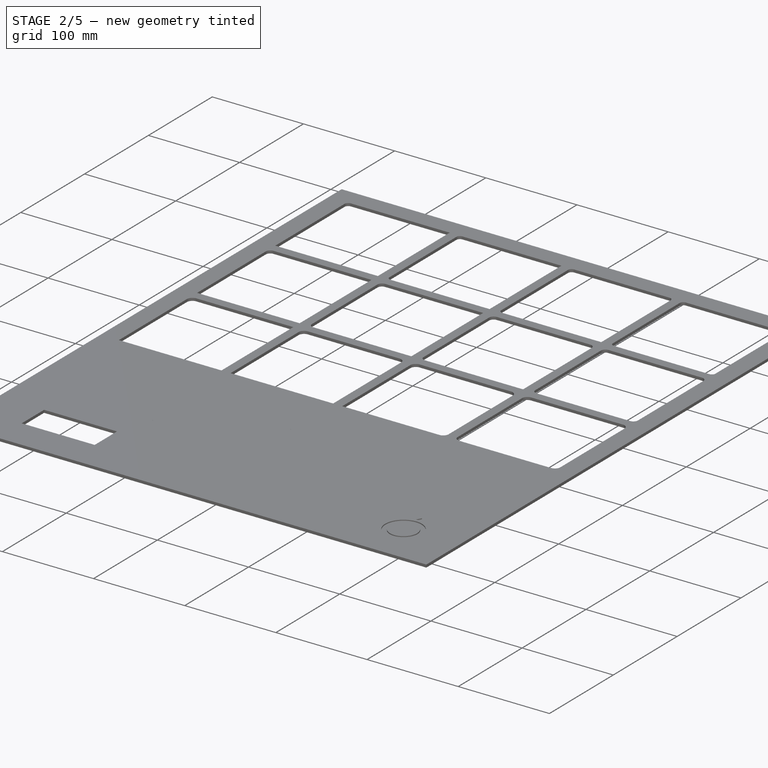
[diagram: stage 2 of 5 — iso view after this stage's code; geometry added in this stage tinted green]
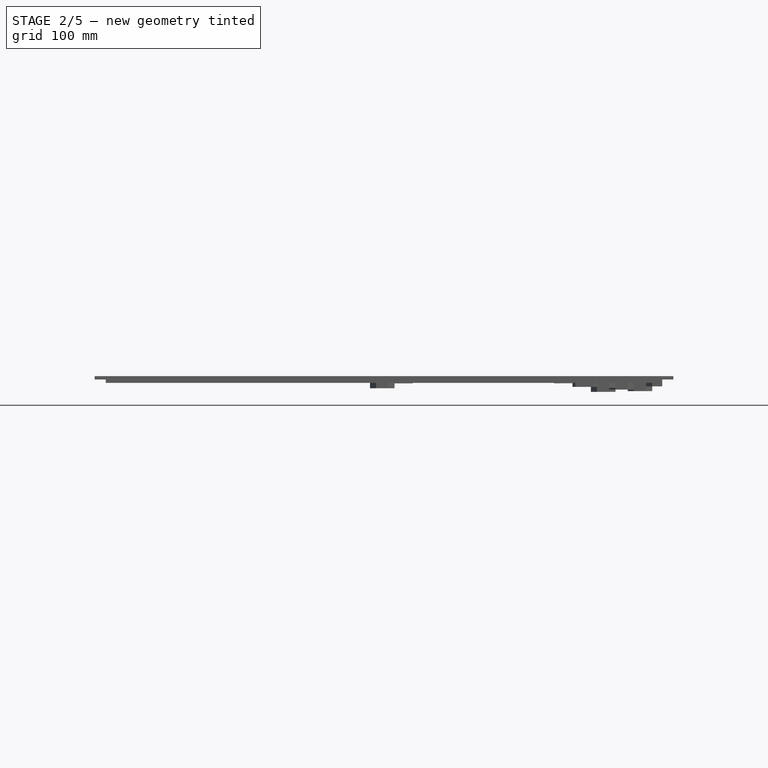
[diagram: stage 2 of 5 — front view after this stage's code; geometry added in this stage tinted green]
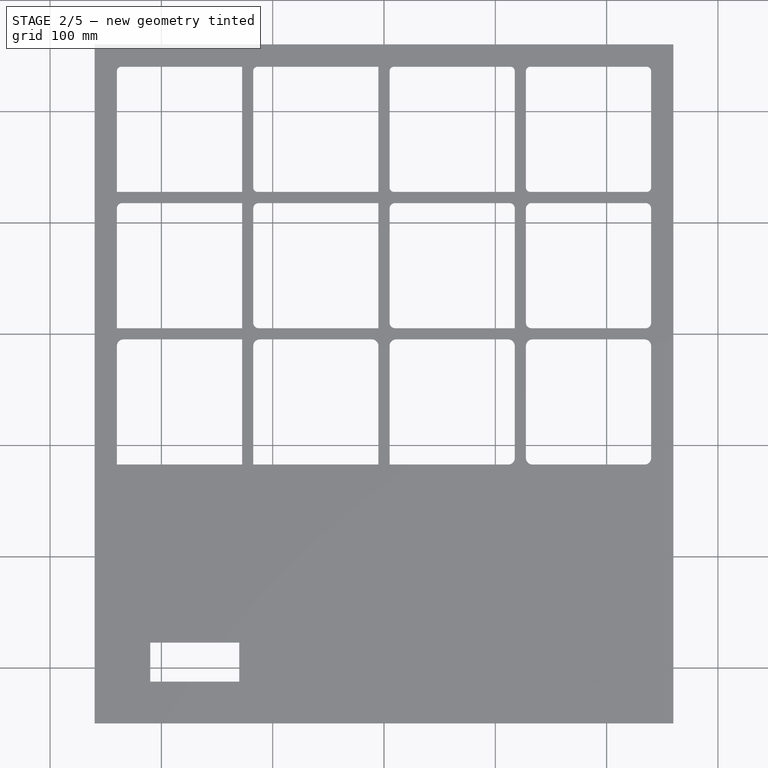
[diagram: stage 2 of 5 — top view after this stage's code; geometry added in this stage tinted green]
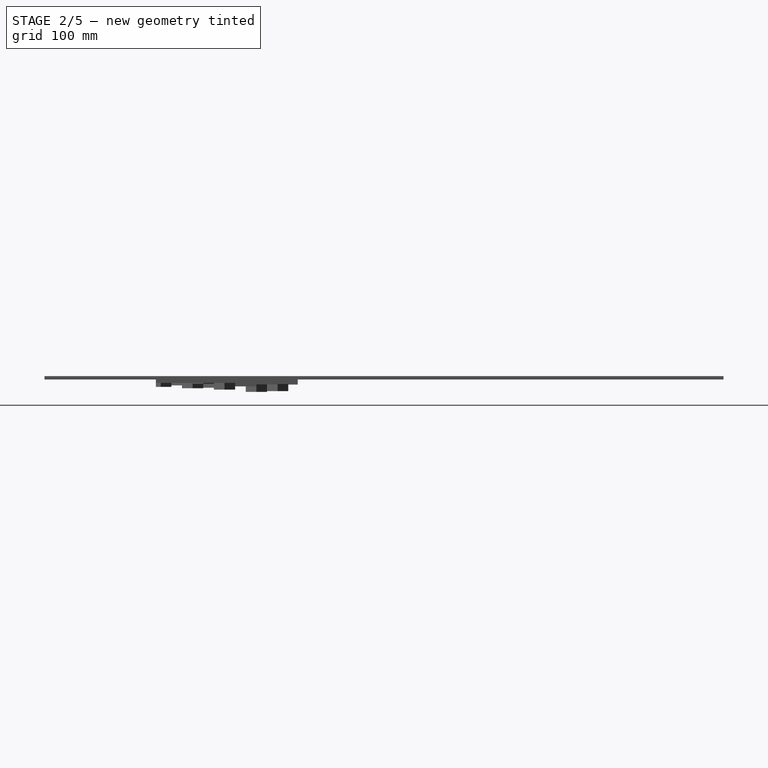
[diagram: stage 2 of 5 — right view after this stage's code; geometry added in this stage tinted green]
FEATURE [Part::FeaturePython] Clone003  label="Body003"  # WARN: FeaturePython — macro-defined, semantics opaque (R4)
  AttacherType = Attacher::AttachEngine3D
  Fuse = false
  Scale = (1,1,1)
FEATURE [Part::Cut] Cut003
  Base = -> Clone006
  Tool = -> Clone007
FEATURE [PartDesign::FeatureBase] BaseFeature003
  BaseFeature = -> Cut003
FEATURE [Sketcher::SketchObject] Sketch003
  ExternalGeometry = -> [BaseFeature003]
  MapMode = 5
  Placement = pos=(0,0,-3) rot=(0,0,1;0rad)
  Support = -> [BaseFeature003]
  sketch-geometry (36):
    g0: LineSegment [constr] StartX=-250 StartY=250 StartZ=0 EndX=-121.905 EndY=250 EndZ=0
    g1: LineSegment StartX=-121.905 StartY=250 StartZ=0 EndX=0 EndY=250 EndZ=0
    g2: LineSegment [constr] StartX=0 StartY=250 StartZ=0 EndX=123.676 EndY=250 EndZ=0
    g3: LineSegment [constr] StartX=123.676 StartY=250 StartZ=0 EndX=250 EndY=250 EndZ=0
    g4: LineSegment [constr] StartX=250 StartY=250 StartZ=0 EndX=250 EndY=126.908 EndZ=0
    g5: LineSegment [constr] StartX=250 StartY=126.908 StartZ=0 EndX=250 EndY=1.96272 EndZ=0
    g6: LineSegment [constr] StartX=250 StartY=1.96272 StartZ=0 EndX=250 EndY=-120.896 EndZ=0
    g7: LineSegment [constr] StartX=250 StartY=-120.896 StartZ=0 EndX=250 EndY=-250 EndZ=0
    g8: LineSegment [constr] StartX=250 StartY=-250 StartZ=0 EndX=126.964 EndY=-250 EndZ=0
    g9: LineSegment [constr] StartX=126.964 StartY=-250 StartZ=0 EndX=0 EndY=-250 EndZ=0
    g10: LineSegment [constr] StartX=0 StartY=-250 StartZ=0 EndX=-121.905 EndY=-250 EndZ=0
    g11: LineSegment [constr] StartX=-121.905 StartY=-250 StartZ=0 EndX=-250 EndY=-250 EndZ=0
    g12: LineSegment [constr] StartX=-250 StartY=-250 StartZ=0 EndX=-250 EndY=-122.5 EndZ=0
    g13: LineSegment [constr] StartX=-250 StartY=-122.5 StartZ=0 EndX=-250 EndY=0 EndZ=0
    g14: LineSegment [constr] StartX=-250 StartY=0 StartZ=0 EndX=-250 EndY=122.5 EndZ=0
    g15: LineSegment [constr] StartX=-250 StartY=122.5 StartZ=0 EndX=-250 EndY=250 EndZ=0
    g16: LineSegment [constr] StartX=-250 StartY=122.5 StartZ=0 EndX=-121.905 EndY=122.5 EndZ=0
    g17: LineSegment StartX=-121.905 StartY=122.5 StartZ=0 EndX=-121.905 EndY=250 EndZ=0
    g18: LineSegment [constr] StartX=-121.905 StartY=122.5 StartZ=0 EndX=-121.905 EndY=0 EndZ=0
    g19: LineSegment [constr] StartX=-121.905 StartY=0 StartZ=0 EndX=-250 EndY=0 EndZ=0
    g20: LineSegment [constr] StartX=-250 StartY=-122.5 StartZ=0 EndX=-121.905 EndY=-122.5 EndZ=0
    g21: LineSegment [constr] StartX=-121.905 StartY=-122.5 StartZ=0 EndX=-121.905 EndY=0 EndZ=0
    g22: LineSegment [constr] StartX=-121.905 StartY=-122.5 StartZ=0 EndX=-121.905 EndY=-250 EndZ=0
    g23: LineSegment StartX=-121.905 StartY=122.5 StartZ=0 EndX=0 EndY=122.5 EndZ=0
    g24: LineSegment StartX=0 StartY=122.5 StartZ=0 EndX=0 EndY=250 EndZ=0
    g25: LineSegment [constr] StartX=-121.905 StartY=0 StartZ=0 EndX=0 EndY=0 EndZ=0
    g26: LineSegment [constr] StartX=0 StartY=0 StartZ=0 EndX=0 EndY=122.5 EndZ=0
    g27: LineSegment [constr] StartX=-121.905 StartY=-122.5 StartZ=0 EndX=0 EndY=-122.5 EndZ=0
    g28: LineSegment [constr] StartX=0 StartY=-122.5 StartZ=0 EndX=0 EndY=0 EndZ=0
    g29: LineSegment [constr] StartX=0 StartY=-122.5 StartZ=0 EndX=0 EndY=-250 EndZ=0
    g30: LineSegment [constr] StartX=-127.5 StartY=127.5 StartZ=0 EndX=-121.905 EndY=122.5 EndZ=0
    g31: LineSegment [constr] StartX=-121.905 StartY=122.5 StartZ=0 EndX=-127.5 EndY=117.5 EndZ=0
    g32: LineSegment [constr] StartX=-127.5 StartY=5 StartZ=0 EndX=-121.905 EndY=0 EndZ=0
    g33: LineSegment [constr] StartX=-121.905 StartY=0 StartZ=0 EndX=-127.5 EndY=-5 EndZ=0
    g34: LineSegment [constr] StartX=-127.5 StartY=-117.5 StartZ=0 EndX=-121.905 EndY=-122.5 EndZ=0
    g35: LineSegment [constr] StartX=-121.905 StartY=-122.5 StartZ=0 EndX=-127.5 EndY=-127.5 EndZ=0
  constraints (88):
    c: Horizontal(g0)
    c: Coincident(g0,g1)
    c: Horizontal(g1)
    c: Coincident(g1,g2)
    c: Horizontal(g2)
    c: Coincident(g2,g3)
    c: Horizontal(g3)
    c: Coincident(g3,g4)
    c: Vertical(g4)
    c: Coincident(g4,g5)
    c: Vertical(g5)
    c: Coincident(g5,g6)
    c: Vertical(g6)
    c: Coincident(g6,g7)
    c: Vertical(g7)
    c: Coincident(g7,g8)
    c: Horizontal(g8)
    c: Coincident(g8,g9)
    c: Horizontal(g9)
    c: Coincident(g9,g10)
    c: Horizontal(g10)
    c: Coincident(g10,g11)
    c: Horizontal(g11)
    c: Coincident(g11,g12)
    c: Vertical(g12)
    c: Coincident(g12,g13)
    c: Vertical(g13)
    c: Coincident(g13,g14)
    c: Vertical(g14)
    c: Coincident(g14,g15)
    c: Coincident(g15,g0)
    c: Vertical(g15)
    c: Coincident(g0,g-3)
    c: Coincident(g-4,g11)
    c: Coincident(g-3,g3)
    c: Coincident(g14,g16)
    c: Horizontal(g16)
    c: Coincident(g16,g17)
    c: Coincident(g17,g0)
    c: Vertical(g17)
    c: Coincident(g16,g18)
    c: Vertical(g18)
    c: Coincident(g18,g19)
    c: Horizontal(g19)
    c: Coincident(g13,g19)
    c: Horizontal(g20)
    c: Coincident(g20,g21)
    c: Coincident(g21,g18)
    c: Vertical(g21)
    c: Coincident(g20,g12)
    c: Coincident(g20,g22)
    c: Coincident(g22,g10)
    c: Vertical(g22)
    c: Coincident(g16,g23)
    c: PointOnObject(g23,g-2)
    c: Horizontal(g23)
    c: Coincident(g23,g24)
    c: Coincident(g24,g1)
    c: Vertical(g24)
    c: Coincident(g25,g-1)
    c: Horizontal(g25)
    c: Coincident(g25,g26)
    c: Coincident(g26,g23)
    c: Coincident(g20,g27)
    c: PointOnObject(g27,g-2)
    c: Horizontal(g27)
    c: Coincident(g27,g28)
    c: Coincident(g28,g-1)
    c: Coincident(g29,g27)
    c: Coincident(g29,g9)
    c: Vertical(g29)
    c: Equal(g21,g28)
    c: Coincident(g25,g18)
    c: Coincident(g-5,g30)
    c: Coincident(g30,g16)
    c: Coincident(g30,g31)
    c: Coincident(g31,g-6)
    c: Equal(g30,g31)
    c: Coincident(g-7,g32)
    c: Coincident(g32,g18)
    c: Coincident(g32,g33)
    c: Coincident(g33,g-8)
    c: Coincident(g-9,g34)
    c: Coincident(g34,g20)
    c: Coincident(g34,g35)
    c: Coincident(g35,g-10)
    c: Equal(g34,g35)
    c: Equal(g32,g33)
FEATURE [PartDesign::Body] Body003  label="Body007"
  BaseFeature = -> Cut003
  Group = -> [BaseFeature003,Sketch003]
  Origin = -> Origin003
  Tip = -> BaseFeature003
FEATURE [Part::Extrusion] Extrude003  label="A2"
  Base = -> Sketch003
  Dir = (0,0,1)
  DirMode = 2
  FaceMakerClass = Part::FaceMakerBullseye
  LengthFwd = 50
  LengthRev = 0
  Solid = true
  Symmetric = true
FEATURE [Part::Mirroring] Part__Mirroring009  label="D2"
  Base = (0,0,0)
  Normal = (0,1,0)
  Source = -> Extrude003
FEATURE [Part::Mirroring] Part__Mirroring011  label="D3"
  Base = (0,0,0)
  Normal = (1,0,0)
  Source = -> Part__Mirroring009
FEATURE [Part::MultiCommon] Common012  label="D1_cut"
  Shapes = -> [Cut,Part__Mirroring]
FEATURE [Part::MultiCommon] Common013  label="D2_cut"
  Shapes = -> [Cut,Part__Mirroring009]
FEATURE [Part::MultiCommon] Common014  label="D3_cut"
  Shapes = -> [Cut,Part__Mirroring011]
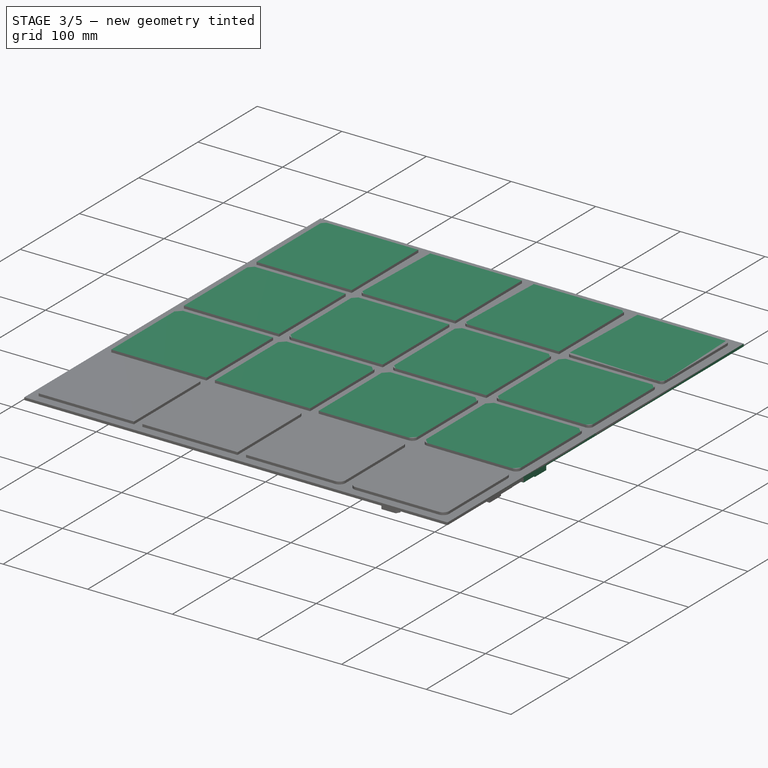
[diagram: stage 3 of 5 — iso view after this stage's code; geometry added in this stage tinted green]
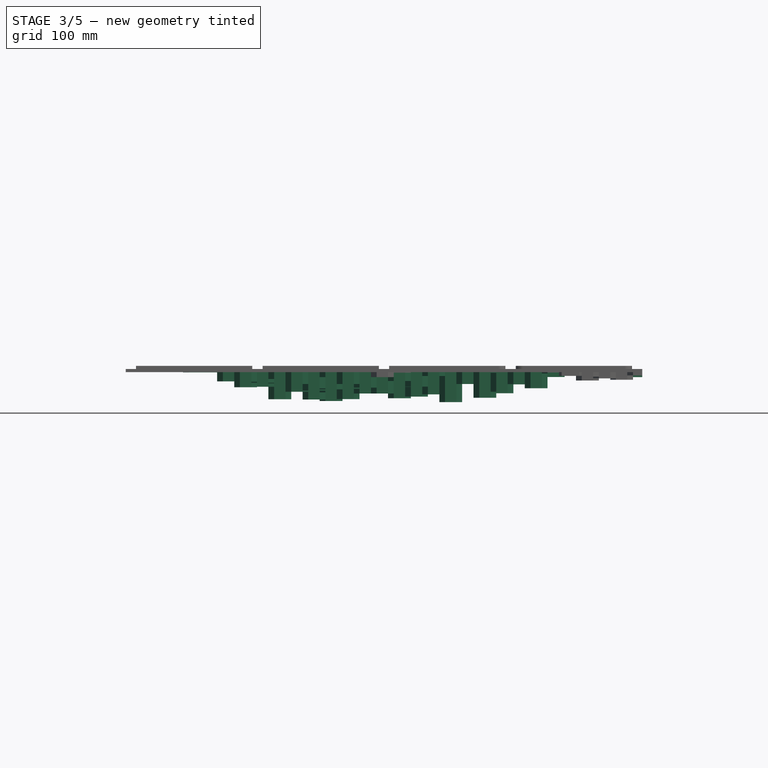
[diagram: stage 3 of 5 — front view after this stage's code; geometry added in this stage tinted green]
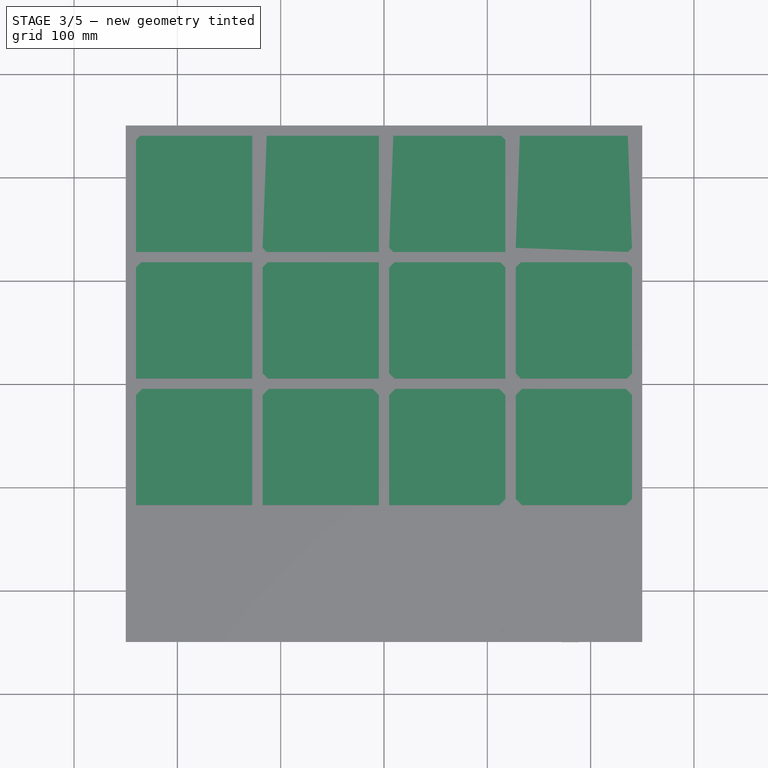
[diagram: stage 3 of 5 — top view after this stage's code; geometry added in this stage tinted green]
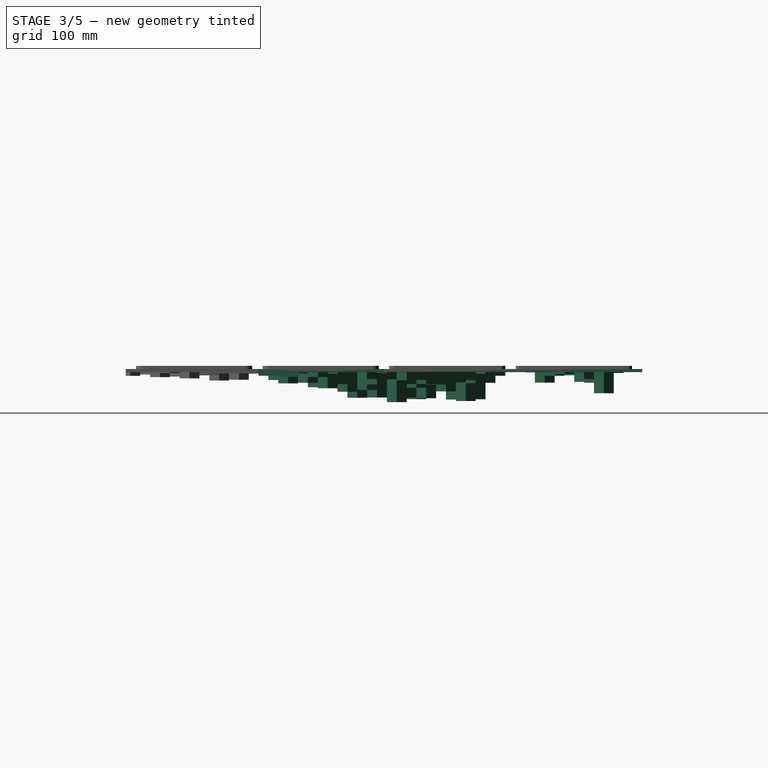
[diagram: stage 3 of 5 — right view after this stage's code; geometry added in this stage tinted green]
FEATURE [Part::FeaturePython] Clone002  # WARN: FeaturePython — macro-defined, semantics opaque (R4)
  AttacherType = Attacher::AttachEngine3D
  Fuse = false
  Placement = pos=(0,0,20.5) rot=(0,0,1;1.5708rad)
  Scale = (1,1,1)
FEATURE [Part::Cut] Cut001
  Base = -> Clone002
  Tool = -> Clone003
FEATURE [PartDesign::FeatureBase] BaseFeature001
  BaseFeature = -> Cut001
FEATURE [Sketcher::SketchObject] Sketch001
  ExternalGeometry = -> [BaseFeature001]
  MapMode = 5
  Placement = pos=(0,0,-3) rot=(0,0,1;0rad)
  Support = -> [BaseFeature001]
  sketch-geometry (36):
    g0: LineSegment [constr] StartX=-250 StartY=250 StartZ=0 EndX=-121.905 EndY=250 EndZ=0
    g1: LineSegment [constr] StartX=-121.905 StartY=250 StartZ=0 EndX=0 EndY=250 EndZ=0
    g2: LineSegment [constr] StartX=0 StartY=250 StartZ=0 EndX=123.676 EndY=250 EndZ=0
    g3: LineSegment [constr] StartX=123.676 StartY=250 StartZ=0 EndX=250 EndY=250 EndZ=0
    g4: LineSegment [constr] StartX=250 StartY=250 StartZ=0 EndX=250 EndY=126.908 EndZ=0
    g5: LineSegment [constr] StartX=250 StartY=126.908 StartZ=0 EndX=250 EndY=1.96272 EndZ=0
    g6: LineSegment [constr] StartX=250 StartY=1.96272 StartZ=0 EndX=250 EndY=-120.896 EndZ=0
    g7: LineSegment [constr] StartX=250 StartY=-120.896 StartZ=0 EndX=250 EndY=-250 EndZ=0
    g8: LineSegment [constr] StartX=250 StartY=-250 StartZ=0 EndX=126.964 EndY=-250 EndZ=0
    g9: LineSegment [constr] StartX=126.964 StartY=-250 StartZ=0 EndX=0 EndY=-250 EndZ=0
    g10: LineSegment [constr] StartX=0 StartY=-250 StartZ=0 EndX=-121.905 EndY=-250 EndZ=0
    g11: LineSegment [constr] StartX=-121.905 StartY=-250 StartZ=0 EndX=-250 EndY=-250 EndZ=0
    g12: LineSegment [constr] StartX=-250 StartY=-250 StartZ=0 EndX=-250 EndY=-122.5 EndZ=0
    g13: LineSegment [constr] StartX=-250 StartY=-122.5 StartZ=0 EndX=-250 EndY=0 EndZ=0
    g14: LineSegment StartX=-250 StartY=0 StartZ=0 EndX=-250 EndY=122.5 EndZ=0
    g15: LineSegment [constr] StartX=-250 StartY=122.5 StartZ=0 EndX=-250 EndY=250 EndZ=0
    g16: LineSegment StartX=-250 StartY=122.5 StartZ=0 EndX=-121.905 EndY=122.5 EndZ=0
    g17: LineSegment [constr] StartX=-121.905 StartY=122.5 StartZ=0 EndX=-121.905 EndY=250 EndZ=0
    g18: LineSegment StartX=-121.905 StartY=122.5 StartZ=0 EndX=-121.905 EndY=0 EndZ=0
    g19: LineSegment StartX=-121.905 StartY=0 StartZ=0 EndX=-250 EndY=0 EndZ=0
    g20: LineSegment [constr] StartX=-250 StartY=-122.5 StartZ=0 EndX=-121.905 EndY=-122.5 EndZ=0
    g21: LineSegment [constr] StartX=-121.905 StartY=-122.5 StartZ=0 EndX=-121.905 EndY=0 EndZ=0
    g22: LineSegment [constr] StartX=-121.905 StartY=-122.5 StartZ=0 EndX=-121.905 EndY=-250 EndZ=0
    g23: LineSegment [constr] StartX=-121.905 StartY=122.5 StartZ=0 EndX=0 EndY=122.5 EndZ=0
    g24: LineSegment [constr] StartX=0 StartY=122.5 StartZ=0 EndX=0 EndY=250 EndZ=0
    g25: LineSegment [constr] StartX=-121.905 StartY=0 StartZ=0 EndX=0 EndY=0 EndZ=0
    g26: LineSegment [constr] StartX=0 StartY=0 StartZ=0 EndX=0 EndY=122.5 EndZ=0
    g27: LineSegment [constr] StartX=-121.905 StartY=-122.5 StartZ=0 EndX=0 EndY=-122.5 EndZ=0
    g28: LineSegment [constr] StartX=0 StartY=-122.5 StartZ=0 EndX=0 EndY=0 EndZ=0
    g29: LineSegment [constr] StartX=0 StartY=-122.5 StartZ=0 EndX=0 EndY=-250 EndZ=0
    g30: LineSegment [constr] StartX=-127.5 StartY=127.5 StartZ=0 EndX=-121.905 EndY=122.5 EndZ=0
    g31: LineSegment [constr] StartX=-121.905 StartY=122.5 StartZ=0 EndX=-127.5 EndY=117.5 EndZ=0
    g32: LineSegment [constr] StartX=-127.5 StartY=5 StartZ=0 EndX=-121.905 EndY=0 EndZ=0
    g33: LineSegment [constr] StartX=-121.905 StartY=0 StartZ=0 EndX=-127.5 EndY=-5 EndZ=0
    g34: LineSegment [constr] StartX=-127.5 StartY=-117.5 StartZ=0 EndX=-121.905 EndY=-122.5 EndZ=0
    g35: LineSegment [constr] StartX=-121.905 StartY=-122.5 StartZ=0 EndX=-127.5 EndY=-127.5 EndZ=0
  constraints (88):
    c: Horizontal(g0)
    c: Coincident(g0,g1)
    c: Horizontal(g1)
    c: Coincident(g1,g2)
    c: Horizontal(g2)
    c: Coincident(g2,g3)
    c: Horizontal(g3)
    c: Coincident(g3,g4)
    c: Vertical(g4)
    c: Coincident(g4,g5)
    c: Vertical(g5)
    c: Coincident(g5,g6)
    c: Vertical(g6)
    c: Coincident(g6,g7)
    c: Vertical(g7)
    c: Coincident(g7,g8)
    c: Horizontal(g8)
    c: Coincident(g8,g9)
    c: Horizontal(g9)
    c: Coincident(g9,g10)
    c: Horizontal(g10)
    c: Coincident(g10,g11)
    c: Horizontal(g11)
    c: Coincident(g11,g12)
    c: Vertical(g12)
    c: Coincident(g12,g13)
    c: Vertical(g13)
    c: Coincident(g13,g14)
    c: Vertical(g14)
    c: Coincident(g14,g15)
    c: Coincident(g15,g0)
    c: Vertical(g15)
    c: Coincident(g0,g-3)
    c: Coincident(g-4,g11)
    c: Coincident(g-3,g3)
    c: Coincident(g14,g16)
    c: Horizontal(g16)
    c: Coincident(g16,g17)
    c: Coincident(g17,g0)
    c: Vertical(g17)
    c: Coincident(g16,g18)
    c: Vertical(g18)
    c: Coincident(g18,g19)
    c: Horizontal(g19)
    c: Coincident(g13,g19)
    c: Horizontal(g20)
    c: Coincident(g20,g21)
    c: Coincident(g21,g18)
    c: Vertical(g21)
    c: Coincident(g20,g12)
    c: Coincident(g20,g22)
    c: Coincident(g22,g10)
    c: Vertical(g22)
    c: Coincident(g16,g23)
    c: PointOnObject(g23,g-2)
    c: Horizontal(g23)
    c: Coincident(g23,g24)
    c: Coincident(g24,g1)
    c: Vertical(g24)
    c: Coincident(g25,g-1)
    c: Horizontal(g25)
    c: Coincident(g25,g26)
    c: Coincident(g26,g23)
    c: Coincident(g20,g27)
    c: PointOnObject(g27,g-2)
    c: Horizontal(g27)
    c: Coincident(g27,g28)
    c: Coincident(g28,g-1)
    c: Coincident(g29,g27)
    c: Coincident(g29,g9)
    c: Vertical(g29)
    c: Equal(g21,g28)
    c: Coincident(g25,g18)
    c: Coincident(g-5,g30)
    c: Coincident(g30,g16)
    c: Coincident(g30,g31)
    c: Coincident(g31,g-6)
    c: Equal(g30,g31)
    c: Coincident(g-7,g32)
    c: Coincident(g32,g18)
    c: Coincident(g32,g33)
    c: Coincident(g33,g-8)
    c: Coincident(g-9,g34)
    c: Coincident(g34,g20)
    c: Coincident(g34,g35)
    c: Coincident(g35,g-10)
    c: Equal(g34,g35)
    c: Equal(g32,g33)
FEATURE [PartDesign::Body] Body001  label="Body002"
  BaseFeature = -> Cut001
  Group = -> [BaseFeature001,Sketch001]
  Origin = -> Origin001
  Tip = -> BaseFeature001
FEATURE [Part::Extrusion] Extrude001  label="B1"
  Base = -> Sketch001
  Dir = (0,0,1)
  DirMode = 2
  FaceMakerClass = Part::FaceMakerBullseye
  LengthFwd = 50
  LengthRev = 0
  Solid = true
  Symmetric = true
FEATURE [Part::Mirroring] Part__Mirroring003  label="C1"
  Base = (0,0,0)
  Normal = (0,1,0)
  Source = -> Extrude001
FEATURE [Part::Mirroring] Part__Mirroring005  label="C4"
  Base = (0,0,0)
  Normal = (1,0,0)
  Source = -> Part__Mirroring003
FEATURE [Part::FeaturePython] Clone004  # WARN: FeaturePython — macro-defined, semantics opaque (R4)
  AttacherType = Attacher::AttachEngine3D
  Fuse = false
  Placement = pos=(0,0,20.5) rot=(0,0,1;1.5708rad)
  Scale = (1,1,1)
FEATURE [Part::FeaturePython] Clone005  label="Body005"  # WARN: FeaturePython — macro-defined, semantics opaque (R4)
  AttacherType = Attacher::AttachEngine3D
  Fuse = false
  Scale = (1,1,1)
FEATURE [Part::Cut] Cut002
  Base = -> Clone004
  Tool = -> Clone005
FEATURE [Part::MultiCommon] Common011  label="C4_cut"
  Shapes = -> [Cut,Part__Mirroring005]
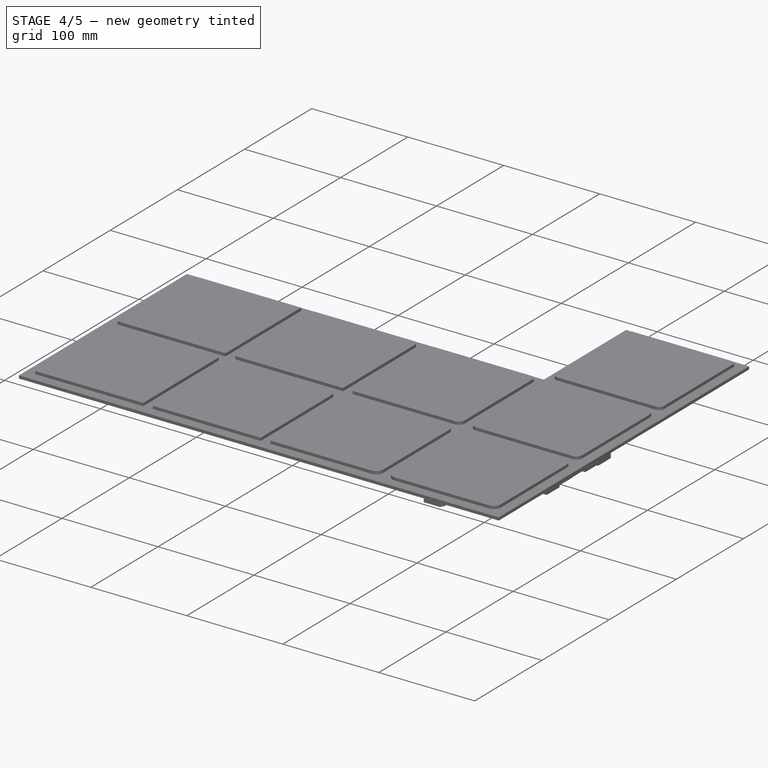
[diagram: stage 4 of 5 — iso view after this stage's code; geometry added in this stage tinted green]
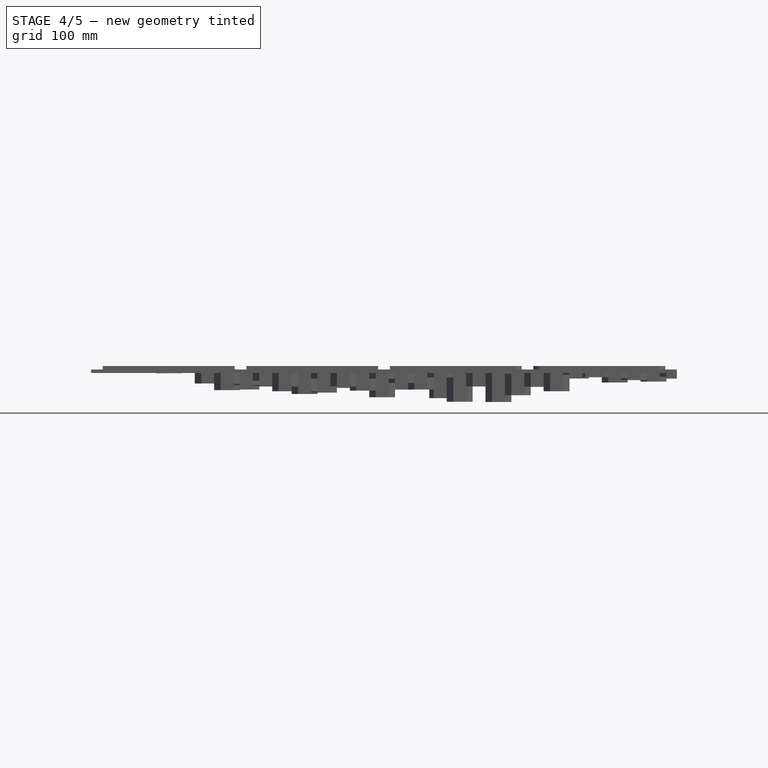
[diagram: stage 4 of 5 — front view after this stage's code; geometry added in this stage tinted green]
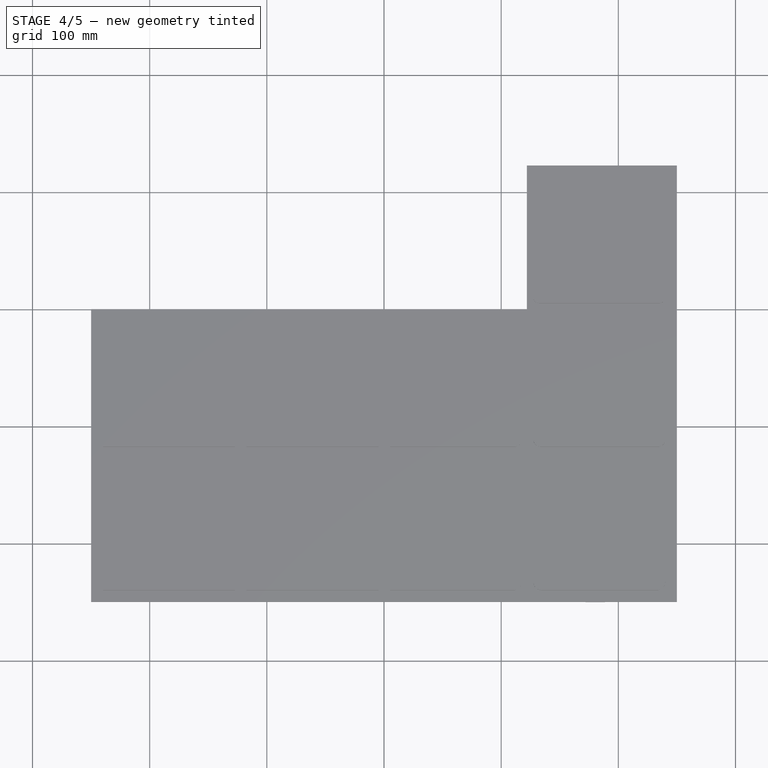
[diagram: stage 4 of 5 — top view after this stage's code; geometry added in this stage tinted green]
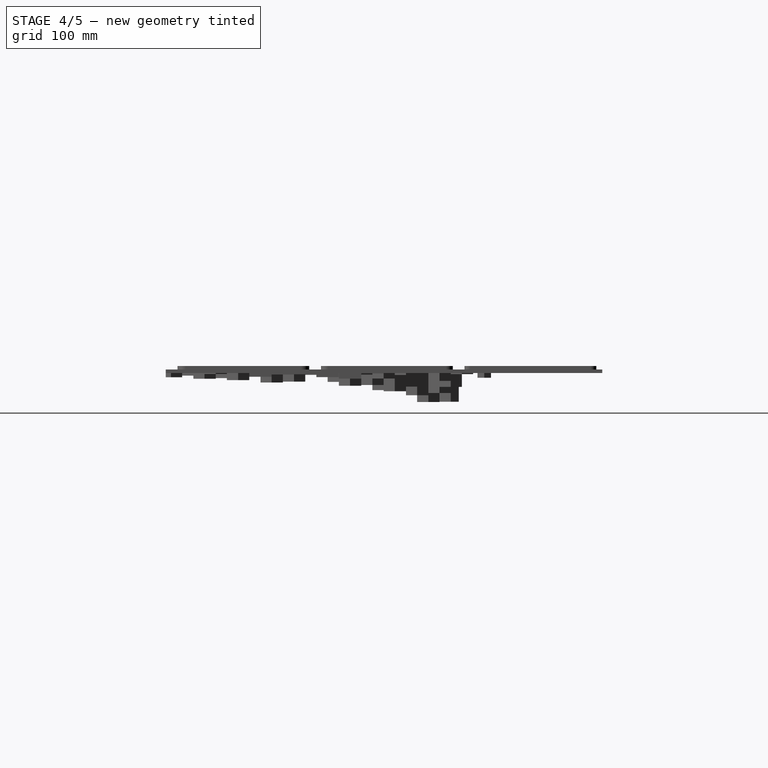
[diagram: stage 4 of 5 — right view after this stage's code; geometry added in this stage tinted green]
FEATURE [Part::Mirroring] Part__Mirroring004  label="B4"
  Base = (0,0,0)
  Normal = (1,0,0)
  Source = -> Extrude001
FEATURE [PartDesign::FeatureBase] BaseFeature002
  BaseFeature = -> Cut002
FEATURE [Sketcher::SketchObject] Sketch002
  ExternalGeometry = -> [BaseFeature002]
  MapMode = 5
  Placement = pos=(0,0,-3) rot=(0,0,1;0rad)
  Support = -> [BaseFeature002]
  sketch-geometry (36):
    g0: LineSegment [constr] StartX=-250 StartY=250 StartZ=0 EndX=-121.905 EndY=250 EndZ=0
    g1: LineSegment [constr] StartX=-121.905 StartY=250 StartZ=0 EndX=0 EndY=250 EndZ=0
    g2: LineSegment [constr] StartX=0 StartY=250 StartZ=0 EndX=123.676 EndY=250 EndZ=0
    g3: LineSegment [constr] StartX=123.676 StartY=250 StartZ=0 EndX=250 EndY=250 EndZ=0
    g4: LineSegment [constr] StartX=250 StartY=250 StartZ=0 EndX=250 EndY=126.908 EndZ=0
    g5: LineSegment [constr] StartX=250 StartY=126.908 StartZ=0 EndX=250 EndY=1.96272 EndZ=0
    g6: LineSegment [constr] StartX=250 StartY=1.96272 StartZ=0 EndX=250 EndY=-120.896 EndZ=0
    g7: LineSegment [constr] StartX=250 StartY=-120.896 StartZ=0 EndX=250 EndY=-250 EndZ=0
    g8: LineSegment [constr] StartX=250 StartY=-250 StartZ=0 EndX=126.964 EndY=-250 EndZ=0
    g9: LineSegment [constr] StartX=126.964 StartY=-250 StartZ=0 EndX=0 EndY=-250 EndZ=0
    g10: LineSegment [constr] StartX=0 StartY=-250 StartZ=0 EndX=-121.905 EndY=-250 EndZ=0
    g11: LineSegment [constr] StartX=-121.905 StartY=-250 StartZ=0 EndX=-250 EndY=-250 EndZ=0
    g12: LineSegment [constr] StartX=-250 StartY=-250 StartZ=0 EndX=-250 EndY=-122.5 EndZ=0
    g13: LineSegment [constr] StartX=-250 StartY=-122.5 StartZ=0 EndX=-250 EndY=0 EndZ=0
    g14: LineSegment [constr] StartX=-250 StartY=0 StartZ=0 EndX=-250 EndY=122.5 EndZ=0
    g15: LineSegment [constr] StartX=-250 StartY=122.5 StartZ=0 EndX=-250 EndY=250 EndZ=0
    g16: LineSegment [constr] StartX=-250 StartY=122.5 StartZ=0 EndX=-121.905 EndY=122.5 EndZ=0
    g17: LineSegment [constr] StartX=-121.905 StartY=122.5 StartZ=0 EndX=-121.905 EndY=250 EndZ=0
    g18: LineSegment StartX=-121.905 StartY=122.5 StartZ=0 EndX=-121.905 EndY=0 EndZ=0
    g19: LineSegment [constr] StartX=-121.905 StartY=0 StartZ=0 EndX=-250 EndY=0 EndZ=0
    g20: LineSegment [constr] StartX=-250 StartY=-122.5 StartZ=0 EndX=-121.905 EndY=-122.5 EndZ=0
    g21: LineSegment [constr] StartX=-121.905 StartY=-122.5 StartZ=0 EndX=-121.905 EndY=0 EndZ=0
    g22: LineSegment [constr] StartX=-121.905 StartY=-122.5 StartZ=0 EndX=-121.905 EndY=-250 EndZ=0
    g23: LineSegment StartX=-121.905 StartY=122.5 StartZ=0 EndX=0 EndY=122.5 EndZ=0
    g24: LineSegment [constr] StartX=0 StartY=122.5 StartZ=0 EndX=0 EndY=250 EndZ=0
    g25: LineSegment StartX=-121.905 StartY=0 StartZ=0 EndX=0 EndY=0 EndZ=0
    g26: LineSegment StartX=0 StartY=0 StartZ=0 EndX=0 EndY=122.5 EndZ=0
    g27: LineSegment [constr] StartX=-121.905 StartY=-122.5 StartZ=0 EndX=0 EndY=-122.5 EndZ=0
    g28: LineSegment [constr] StartX=0 StartY=-122.5 StartZ=0 EndX=0 EndY=0 EndZ=0
    g29: LineSegment [constr] StartX=0 StartY=-122.5 StartZ=0 EndX=0 EndY=-250 EndZ=0
    g30: LineSegment [constr] StartX=-127.5 StartY=127.5 StartZ=0 EndX=-121.905 EndY=122.5 EndZ=0
    g31: LineSegment [constr] StartX=-121.905 StartY=122.5 StartZ=0 EndX=-127.5 EndY=117.5 EndZ=0
    g32: LineSegment [constr] StartX=-127.5 StartY=5 StartZ=0 EndX=-121.905 EndY=0 EndZ=0
    g33: LineSegment [constr] StartX=-121.905 StartY=0 StartZ=0 EndX=-127.5 EndY=-5 EndZ=0
    g34: LineSegment [constr] StartX=-127.5 StartY=-117.5 StartZ=0 EndX=-121.905 EndY=-122.5 EndZ=0
    g35: LineSegment [constr] StartX=-121.905 StartY=-122.5 StartZ=0 EndX=-127.5 EndY=-127.5 EndZ=0
  constraints (88):
    c: Horizontal(g0)
    c: Coincident(g0,g1)
    c: Horizontal(g1)
    c: Coincident(g1,g2)
    c: Horizontal(g2)
    c: Coincident(g2,g3)
    c: Horizontal(g3)
    c: Coincident(g3,g4)
    c: Vertical(g4)
    c: Coincident(g4,g5)
    c: Vertical(g5)
    c: Coincident(g5,g6)
    c: Vertical(g6)
    c: Coincident(g6,g7)
    c: Vertical(g7)
    c: Coincident(g7,g8)
    c: Horizontal(g8)
    c: Coincident(g8,g9)
    c: Horizontal(g9)
    c: Coincident(g9,g10)
    c: Horizontal(g10)
    c: Coincident(g10,g11)
    c: Horizontal(g11)
    c: Coincident(g11,g12)
    c: Vertical(g12)
    c: Coincident(g12,g13)
    c: Vertical(g13)
    c: Coincident(g13,g14)
    c: Vertical(g14)
    c: Coincident(g14,g15)
    c: Coincident(g15,g0)
    c: Vertical(g15)
    c: Coincident(g0,g-3)
    c: Coincident(g-4,g11)
    c: Coincident(g-3,g3)
    c: Coincident(g14,g16)
    c: Horizontal(g16)
    c: Coincident(g16,g17)
    c: Coincident(g17,g0)
    c: Vertical(g17)
    c: Coincident(g16,g18)
    c: Vertical(g18)
    c: Coincident(g18,g19)
    c: Horizontal(g19)
    c: Coincident(g13,g19)
    c: Horizontal(g20)
    c: Coincident(g20,g21)
    c: Coincident(g21,g18)
    c: Vertical(g21)
    c: Coincident(g20,g12)
    c: Coincident(g20,g22)
    c: Coincident(g22,g10)
    c: Vertical(g22)
    c: Coincident(g16,g23)
    c: PointOnObject(g23,g-2)
    c: Horizontal(g23)
    c: Coincident(g23,g24)
    c: Coincident(g24,g1)
    c: Vertical(g24)
    c: Coincident(g25,g-1)
    c: Horizontal(g25)
    c: Coincident(g25,g26)
    c: Coincident(g26,g23)
    c: Coincident(g20,g27)
    c: PointOnObject(g27,g-2)
    c: Horizontal(g27)
    c: Coincident(g27,g28)
    c: Coincident(g28,g-1)
    c: Coincident(g29,g27)
    c: Coincident(g29,g9)
    c: Vertical(g29)
    c: Equal(g21,g28)
    c: Coincident(g25,g18)
    c: Coincident(g-5,g30)
    c: Coincident(g30,g16)
    c: Coincident(g30,g31)
    c: Coincident(g31,g-6)
    c: Equal(g30,g31)
    c: Coincident(g-7,g32)
    c: Coincident(g32,g18)
    c: Coincident(g32,g33)
    c: Coincident(g33,g-8)
    c: Coincident(g-9,g34)
    c: Coincident(g34,g20)
    c: Coincident(g34,g35)
    c: Coincident(g35,g-10)
    c: Equal(g34,g35)
    c: Equal(g32,g33)
FEATURE [PartDesign::Body] Body002  label="Body004"
  BaseFeature = -> Cut002
  Group = -> [BaseFeature002,Sketch002]
  Origin = -> Origin002
  Tip = -> BaseFeature002
FEATURE [Part::Extrusion] Extrude002  label="B2"
  Base = -> Sketch002
  Dir = (0,0,1)
  DirMode = 2
  FaceMakerClass = Part::FaceMakerBullseye
  LengthFwd = 70
  LengthRev = 0
  Solid = true
  Symmetric = true
FEATURE [Part::Mirroring] Part__Mirroring006  label="C2"
  Base = (0,0,0)
  Normal = (0,1,0)
  Source = -> Extrude002
FEATURE [Part::Mirroring] Part__Mirroring008  label="C3"
  Base = (0,0,0)
  Normal = (1,0,0)
  Source = -> Part__Mirroring006
FEATURE [Part::MultiCommon] Common007  label="B4_cut"
  Shapes = -> [Part__Mirroring004,Cut]
FEATURE [Part::MultiCommon] Common008  label="C1_cut"
  Shapes = -> [Part__Mirroring003,Cut]
FEATURE [Part::MultiCommon] Common009  label="C2_cut"
  Shapes = -> [Part__Mirroring006,Cut]
FEATURE [Part::MultiCommon] Common010  label="C3_cut"
  Shapes = -> [Cut,Part__Mirroring008]
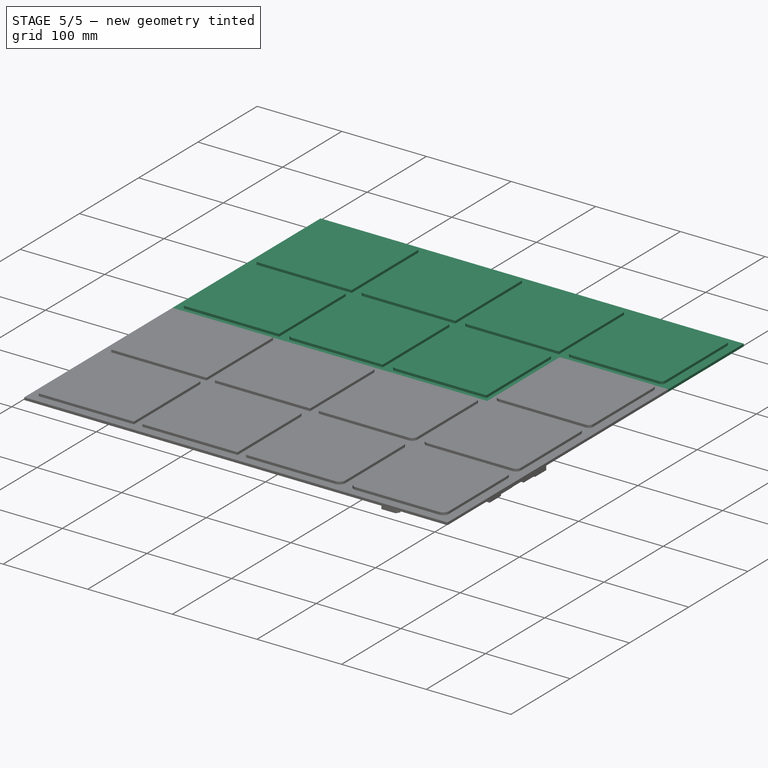
[diagram: stage 5 of 5 — iso view after this stage's code; geometry added in this stage tinted green]
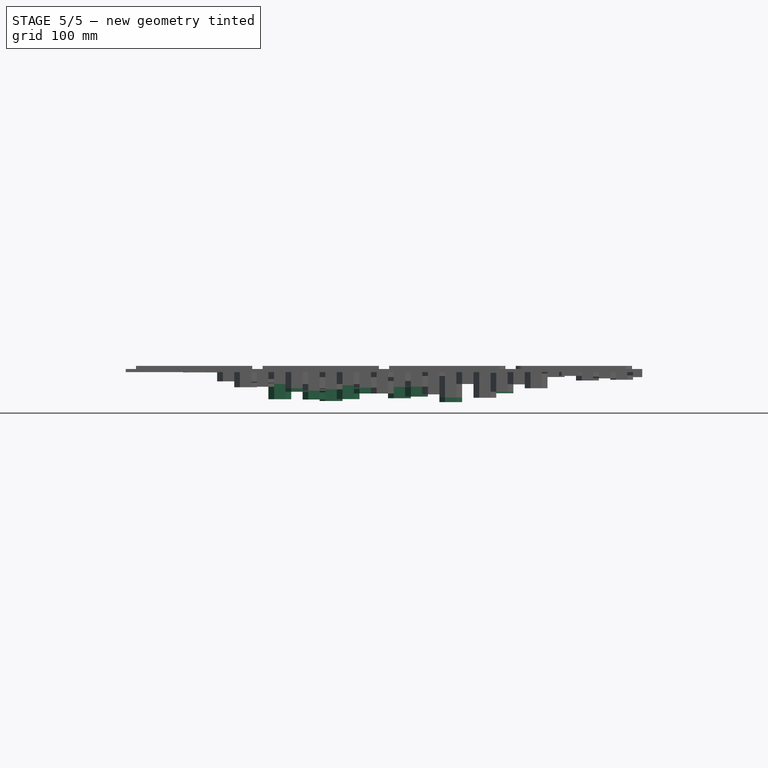
[diagram: stage 5 of 5 — front view after this stage's code; geometry added in this stage tinted green]
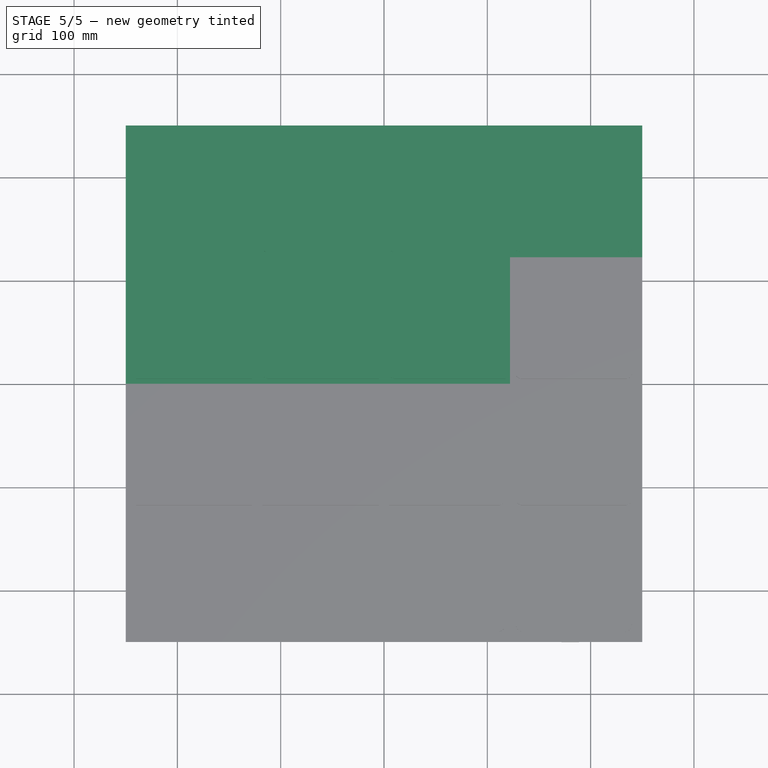
[diagram: stage 5 of 5 — top view after this stage's code; geometry added in this stage tinted green]
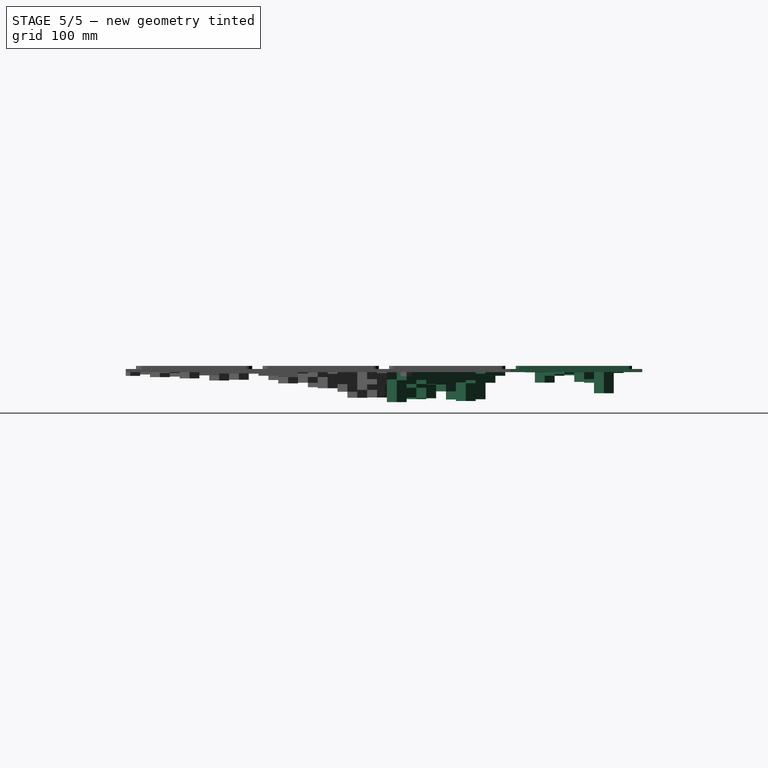
[diagram: stage 5 of 5 — right view after this stage's code; geometry added in this stage tinted green]
FEATURE [Part::Mirroring] Part__Mirroring001  label="A4"
  Base = (0,0,0)
  Normal = (1,0,0)
  Source = -> Extrude
FEATURE [Part::Mirroring] Part__Mirroring007  label="B3"
  Base = (0,0,0)
  Normal = (1,0,0)
  Source = -> Extrude002
FEATURE [Part::Mirroring] Part__Mirroring010  label="A3"
  Base = (0,0,0)
  Normal = (1,0,0)
  Source = -> Extrude003
FEATURE [Part::MultiCommon] Common  label="A1_cut"
  Shapes = -> [Cut,Extrude]
FEATURE [Part::MultiCommon] Common001  label="A2_cut"
  Shapes = -> [Cut,Extrude003]
FEATURE [Part::MultiCommon] Common002  label="A3_cut"
  Shapes = -> [Part__Mirroring010,Cut]
FEATURE [Part::MultiCommon] Common003  label="A4_cut"
  Shapes = -> [Part__Mirroring001,Cut]
FEATURE [Part::MultiCommon] Common004  label="B1_cut"
  Shapes = -> [Extrude001,Cut]
FEATURE [Part::MultiCommon] Common005  label="B2_cut"
  Shapes = -> [Cut,Extrude002]
FEATURE [Part::MultiCommon] Common006  label="B3_cut"
  Shapes = -> [Cut,Part__Mirroring007]
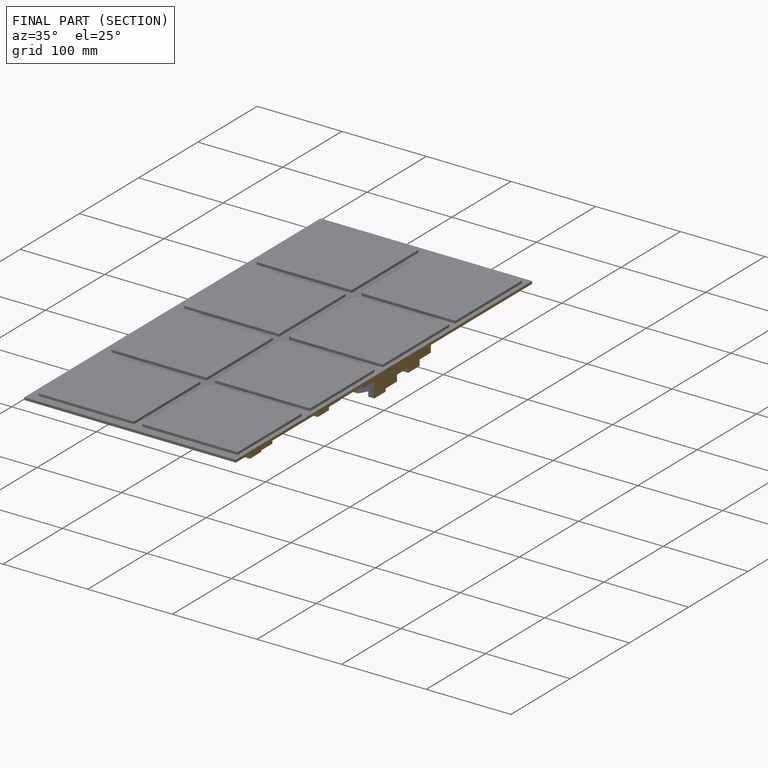
[diagram: finished part — half-section view (interior)]
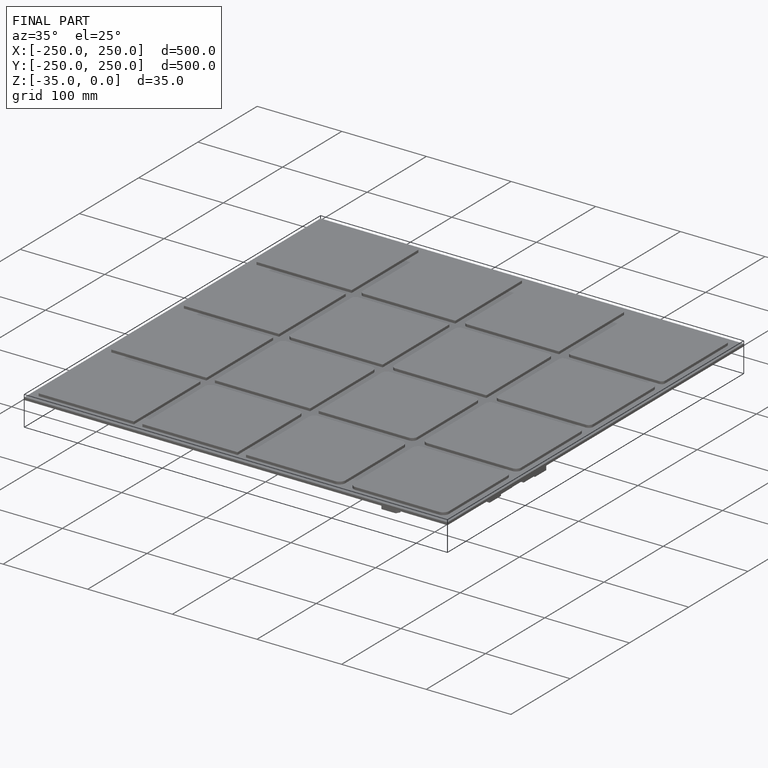
[diagram: finished part — iso view with bounding-box wireframe]
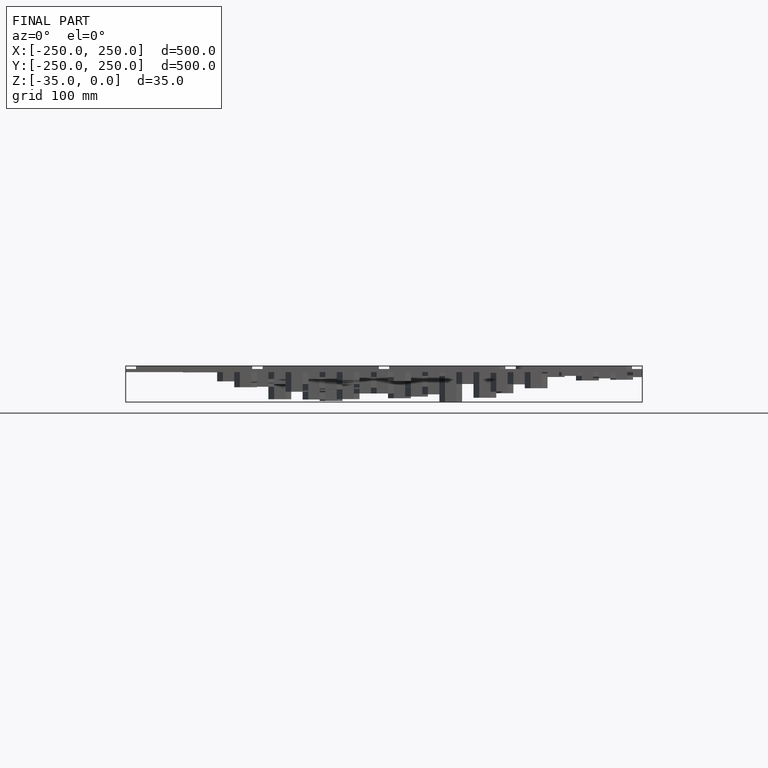
[diagram: finished part — front view with bounding-box wireframe]
